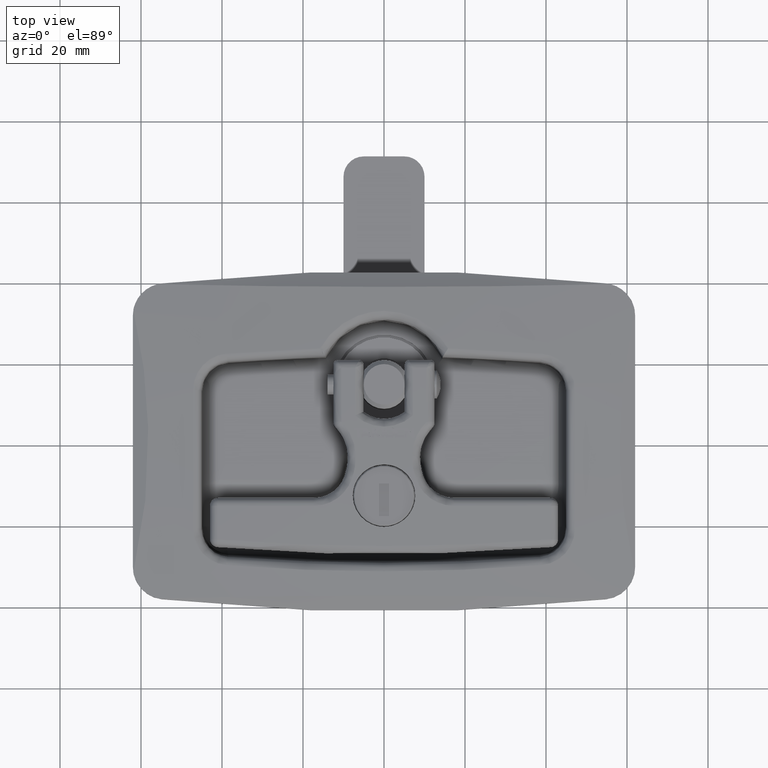
[diagram: clean part render]
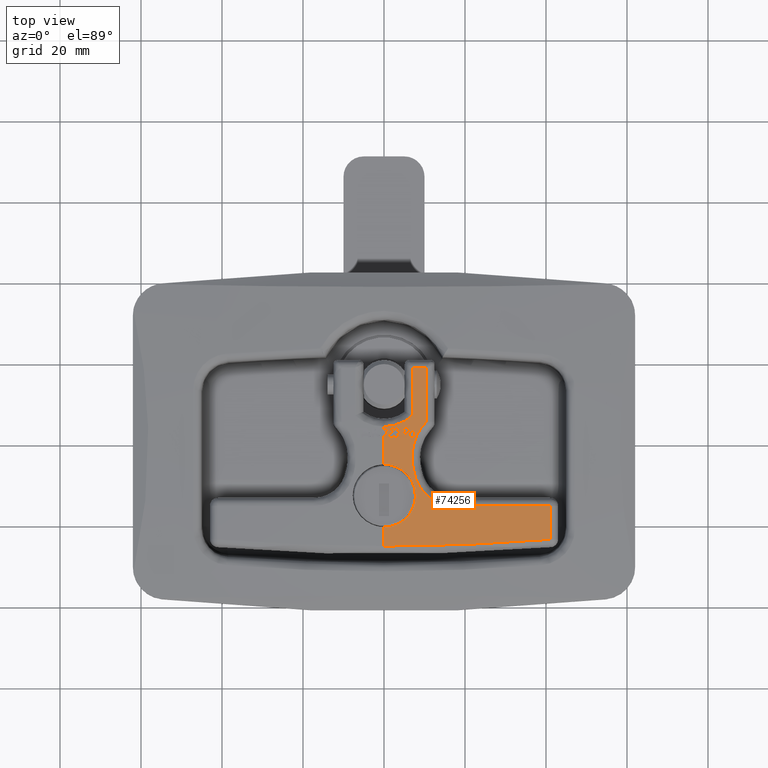
[diagram: same view with one face highlighted and labeled with its STEP entity id]
A machine part, top view. The second image highlights one B-rep face of the part: STEP entity #74256.
In plain terms, the highlighted toroidal blend (fillet) surface has major radius 300 mm and minor (blend) radius 500 mm.
Its self-contained STEP definition (entity closure, byte-faithful):
#619 = DIRECTION ( 'NONE',  ( 9.251858538542535200E-015, 1.000000000000000000, 0.0000000000000000000 ) ) ;
#769 = DIRECTION ( 'NONE',  ( -1.000000000000000000, 6.938780060218920200E-015, -8.367273950974986400E-013 ) ) ;
#770 = DIRECTION ( 'NONE',  ( -6.938893903907125800E-015, -1.000000000000000000, 0.0000000000000000000 ) ) ;
#771 = CARTESIAN_POINT ( 'NONE',  ( 1.200428645375933600E-013, 3.300000000000011400, -800.0000000000000000 ) ) ;
#772 = AXIS2_PLACEMENT_3D ( 'NONE', #771, #770, #769 ) ;
#773 = CIRCLE ( 'NONE', #772, 799.7006203718382300 ) ;
#876 = DIRECTION ( 'NONE',  ( 1.000000000000000000, -9.251862448518804000E-015, -1.117329132406560200E-012 ) ) ;
#1823 = CARTESIAN_POINT ( 'NONE',  ( 1.369275063704301600E-013, 0.8000000000000715400, -800.0000000000000000 ) ) ;
#1824 = AXIS2_PLACEMENT_3D ( 'NONE', #1823, #619, #876 ) ;
#1825 = CIRCLE ( 'NONE', #1824, 799.7809120004484400 ) ;
#2469 = CARTESIAN_POINT ( 'NONE',  ( 7.500000000000040000, 3.300000000000011400, -0.3345498127964012200 ) ) ;
#2470 = CARTESIAN_POINT ( 'NONE',  ( 7.500000000000042600, 2.886518471700572500, -0.3202341510680217200 ) ) ;
#2471 = CARTESIAN_POINT ( 'NONE',  ( 7.500000000000043500, 2.472933092971594700, -0.3064287388708536500 ) ) ;
#2472 = CARTESIAN_POINT ( 'NONE',  ( 7.500000000000044400, 1.955821392997812100, -0.2898105889861933800 ) ) ;
#2474 = CARTESIAN_POINT ( 'NONE',  ( 7.500000000000045300, 1.849489133385922500, -0.2864264770225201100 ) ) ;
#2475 = CARTESIAN_POINT ( 'NONE',  ( 7.500000000000048000, 1.639565757001230800, -0.2798126177759479600 ) ) ;
#2476 = CARTESIAN_POINT ( 'NONE',  ( 7.500000000000049700, 1.324694891380286700, -0.2699915809034050300 ) ) ;
#2477 = CARTESIAN_POINT ( 'NONE',  ( 7.500000000000045300, 1.009866608573217500, -0.2604697012815644400 ) ) ;
#2478 = CARTESIAN_POINT ( 'NONE',  ( 7.500000000000049700, 0.8000000000000020400, -0.2542546532248168800 ) ) ;
#2484 = B_SPLINE_CURVE_WITH_KNOTS ( 'NONE', 3,
 ( #2478, #2477, #2476, #2475, #2474, #2472, #2471, #2470, #2469 ),
 .UNSPECIFIED., .F., .F.,
 ( 4, 1, 2, 2, 4 ),
 ( 4.335119432264718900, 4.335731477006720300, 4.336037499377720600, 4.336343521748721000, 4.337567611232723100 ),
 .UNSPECIFIED. ) ;
#2490 = CARTESIAN_POINT ( 'NONE',  ( 7.500000000000040000, 3.300000000000011400, -0.3345498127964012200 ) ) ;
#4857 = DIRECTION ( 'NONE',  ( 0.0000000000000000000, 0.0000000000000000000, -1.000000000000000000 ) ) ;
#4858 = DIRECTION ( 'NONE',  ( 0.0000000000000000000, 1.000000000000000000, 0.0000000000000000000 ) ) ;
#4859 = AXIS2_PLACEMENT_3D ( 'NONE', #4861, #4858, #4857 ) ;
#4860 = CIRCLE ( 'NONE', #4859, 799.7809120004484400 ) ;
#4861 = CARTESIAN_POINT ( 'NONE',  ( 0.0000000000000000000, 0.8000000000000090400, -800.0000000000000000 ) ) ;
#5270 = CARTESIAN_POINT ( 'NONE',  ( 4.875000000000011500, 1.425000000000023400, -0.2528453365790925300 ) ) ;
#5271 = CARTESIAN_POINT ( 'NONE',  ( 4.875000000000011500, 1.321974975719804000, -0.2496654419829655000 ) ) ;
#5272 = CARTESIAN_POINT ( 'NONE',  ( 4.875000000000012400, 1.218943563153263500, -0.2465172387789936200 ) ) ;
#5273 = CARTESIAN_POINT ( 'NONE',  ( 4.875000000000012400, 1.012867957415827000, -0.2402842351488462800 ) ) ;
#5274 = CARTESIAN_POINT ( 'NONE',  ( 4.875000000000013300, 0.9053371670018663900, -0.2370651269984997400 ) ) ;
#5275 = CARTESIAN_POINT ( 'NONE',  ( 4.875000000000013300, 0.8000000000000090400, -0.2339457220824625600 ) ) ;
#5277 = B_SPLINE_CURVE_WITH_KNOTS ( 'NONE', 3,
 ( #5275, #5274, #5273, #5272, #5271, #5270 ),
 .UNSPECIFIED., .F., .F.,
 ( 4, 2, 4 ),
 ( 4.353560354874982600, 4.353865220701264200, 4.354170086527545900 ),
 .UNSPECIFIED. ) ;
#6734 = CARTESIAN_POINT ( 'NONE',  ( 6.875000000000032000, 3.300000000000004300, -0.3289322489510304600 ) ) ;
#9203 = CARTESIAN_POINT ( 'NONE',  ( 5.624999999999998200, 0.8000000000000020400, -0.2388690519719016700 ) ) ;
#9794 = CARTESIAN_POINT ( 'NONE',  ( 6.750000000000015100, 0.8000000000000090400, -0.2475728700355285300 ) ) ;
#17485 = CARTESIAN_POINT ( 'NONE',  ( 6.875000000000042600, 1.675000000000002900, -0.2753166655187923600 ) ) ;
#17598 = CARTESIAN_POINT ( 'NONE',  ( 5.750000000000014200, 3.300000000000004300, -0.3200516937397241400 ) ) ;
#17627 = B_SPLINE_CURVE_WITH_KNOTS ( 'NONE', 3,
 ( #17673, #17671, #17670, #17669, #17668, #17667, #17666, #17665, #17664 ),
 .UNSPECIFIED., .F., .F.,
 ( 4, 1, 2, 2, 4 ),
 ( 4.314058832237747300, 4.314452437386671100, 4.314649239961132900, 4.314846042535594800, 4.315633252833442200 ),
 .UNSPECIFIED. ) ;
#17631 = CARTESIAN_POINT ( 'NONE',  ( 5.750000000000014200, 3.300000000000004300, -0.3200516937397241400 ) ) ;
#17632 = CARTESIAN_POINT ( 'NONE',  ( 6.124984686261556500, 2.758355453177789400, -0.3039953607772937800 ) ) ;
#17633 = CARTESIAN_POINT ( 'NONE',  ( 6.499985818466359300, 2.216687151104198800, -0.2890836491518625800 ) ) ;
#17634 = CARTESIAN_POINT ( 'NONE',  ( 6.875000000000042600, 1.675000000000002900, -0.2753166655187923600 ) ) ;
#17636 = B_SPLINE_CURVE_WITH_KNOTS ( 'NONE', 3,
 ( #17634, #17633, #17632, #17631 ),
 .UNSPECIFIED., .F., .F.,
 ( 4, 4 ),
 ( 2.433048607383850000E-007, 0.001977173051399547000 ),
 .UNSPECIFIED. ) ;
#17664 = CARTESIAN_POINT ( 'NONE',  ( 6.875000000000042600, 1.675000000000002900, -0.2753166655187923600 ) ) ;
#17665 = CARTESIAN_POINT ( 'NONE',  ( 6.875000000000040900, 1.940977665802284800, -0.2836594742118161400 ) ) ;
#17666 = CARTESIAN_POINT ( 'NONE',  ( 6.875000000000041700, 2.206984480350578300, -0.2922157505308485800 ) ) ;
#17667 = CARTESIAN_POINT ( 'NONE',  ( 6.875000000000037300, 2.539529464059540900, -0.3031781471756449000 ) ) ;
#17668 = CARTESIAN_POINT ( 'NONE',  ( 6.875000000000037300, 2.610520299396035200, -0.3055325463829211000 ) ) ;
#17669 = CARTESIAN_POINT ( 'NONE',  ( 6.875000000000036400, 2.748424918924025700, -0.3101356309460727200 ) ) ;
#17670 = CARTESIAN_POINT ( 'NONE',  ( 6.875000000000032000, 2.955277025850126200, -0.3170829597289485700 ) ) ;
#17671 = CARTESIAN_POINT ( 'NONE',  ( 6.875000000000033800, 3.162114667101745300, -0.3241583817245649600 ) ) ;
#17673 = CARTESIAN_POINT ( 'NONE',  ( 6.875000000000032000, 3.300000000000004300, -0.3289322489510304600 ) ) ;
#25298 = DIRECTION ( 'NONE',  ( -1.000000000000000000, -1.110204809635027200E-014, -1.336653618715566000E-012 ) ) ;
#25299 = DIRECTION ( 'NONE',  ( 1.110223024625143300E-014, -1.000000000000000000, 0.0000000000000000000 ) ) ;
#25300 = CARTESIAN_POINT ( 'NONE',  ( -1.920685832601489800E-013, 3.299999999999927900, -800.0000000000000000 ) ) ;
#25301 = AXIS2_PLACEMENT_3D ( 'NONE', #25300, #25299, #25298 ) ;
#25302 = CIRCLE ( 'NONE', #25301, 799.7006203718382300 ) ;
#27240 = DIRECTION ( 'NONE',  ( 1.000000000000000000, -1.110228916318123600E-014, 1.340267458489916500E-012 ) ) ;
#27241 = DIRECTION ( 'NONE',  ( 1.110223024625143300E-014, 1.000000000000000000, 0.0000000000000000000 ) ) ;
#27242 = CARTESIAN_POINT ( 'NONE',  ( 1.643130076445219100E-013, 0.8000000000000645500, -800.0000000000000000 ) ) ;
#27243 = AXIS2_PLACEMENT_3D ( 'NONE', #27242, #27241, #27240 ) ;
#27244 = CIRCLE ( 'NONE', #27243, 799.7809120004484400 ) ;
#29649 = CARTESIAN_POINT ( 'NONE',  ( 5.624999999999987600, 2.425000000000010500, -0.2896357539984739700 ) ) ;
#29650 = CARTESIAN_POINT ( 'NONE',  ( 5.624999999999989300, 2.157865640918521500, -0.2808554344300001100 ) ) ;
#29651 = CARTESIAN_POINT ( 'NONE',  ( 5.624999999999992000, 1.890688120950035700, -0.2722881306752722400 ) ) ;
#29652 = CARTESIAN_POINT ( 'NONE',  ( 5.624999999999991100, 1.556662225870927700, -0.2618454879466831100 ) ) ;
#29653 = CARTESIAN_POINT ( 'NONE',  ( 5.624999999999991100, 1.486521575392822500, -0.2596667446454959900 ) ) ;
#29654 = CARTESIAN_POINT ( 'NONE',  ( 5.624999999999994700, 1.349217574840511300, -0.2554307552170158600 ) ) ;
#29655 = CARTESIAN_POINT ( 'NONE',  ( 5.624999999999995600, 1.143261399269094800, -0.2491192451824013600 ) ) ;
#29656 = CARTESIAN_POINT ( 'NONE',  ( 5.624999999999997300, 0.9373046994883386100, -0.2429351532678296100 ) ) ;
#29657 = CARTESIAN_POINT ( 'NONE',  ( 5.624999999999998200, 0.8000000000000020400, -0.2388690519719016700 ) ) ;
#29661 = B_SPLINE_CURVE_WITH_KNOTS ( 'NONE', 3,
 ( #29657, #29656, #29655, #29654, #29653, #29652, #29651, #29650, #29649 ),
 .UNSPECIFIED., .F., .F.,
 ( 4, 1, 2, 2, 4 ),
 ( 4.331493872845345400, 4.331889209481447600, 4.332086877799499200, 4.332284546117550800, 4.333075219389755300 ),
 .UNSPECIFIED. ) ;
#29665 = CARTESIAN_POINT ( 'NONE',  ( 5.624999999999987600, 2.425000000000010500, -0.2896357539984739700 ) ) ;
#30118 = CARTESIAN_POINT ( 'NONE',  ( 6.750000000000015100, 0.8000000000000090400, -0.2475728700355285300 ) ) ;
#30119 = CARTESIAN_POINT ( 'NONE',  ( 6.374986700241943400, 1.341685877428320900, -0.2604492178652617100 ) ) ;
#30120 = CARTESIAN_POINT ( 'NONE',  ( 5.999985568202279600, 1.883354179263379200, -0.2744702123763424500 ) ) ;
#30121 = CARTESIAN_POINT ( 'NONE',  ( 5.624999999999987600, 2.425000000000010500, -0.2896357539984739700 ) ) ;
#30122 = B_SPLINE_CURVE_WITH_KNOTS ( 'NONE', 3,
 ( #30121, #30120, #30119, #30118 ),
 .UNSPECIFIED., .F., .F.,
 ( 4, 4 ),
 ( 2.433162083410501300E-007, 0.001977114401081440500 ),
 .UNSPECIFIED. ) ;
#35810 = CARTESIAN_POINT ( 'NONE',  ( 41.10275658069720400, -16.00803212851405600, -1.060633162399385900 ) ) ;
#39120 = CARTESIAN_POINT ( 'NONE',  ( 7.490704703275109300, -15.50417173181754600, -0.03726974788274201700 ) ) ;
#39121 = CARTESIAN_POINT ( 'NONE',  ( 7.342964581410199400, -15.99163248462522400, -0.03760412972284549900 ) ) ;
#39123 = CARTESIAN_POINT ( 'NONE',  ( 7.256349047562118800, -16.23356340110142100, -0.03783791051356851000 ) ) ;
#39769 = CARTESIAN_POINT ( 'NONE',  ( 5.007610140252460800E-023, -21.25000000000000000, -0.05256526310684928700 ) ) ;
#39770 = DIRECTION ( 'NONE',  ( 0.0000000000000000000, 0.0000000000000000000, 1.000000000000000000 ) ) ;
#39771 = DIRECTION ( 'NONE',  ( -1.000000000000000000, 0.0000000000000000000, 0.0000000000000000000 ) ) ;
#39772 = CARTESIAN_POINT ( 'NONE',  ( 0.0000000000000000000, -13.99999999999999800, -500.0000000000000000 ) ) ;
#39773 = AXIS2_PLACEMENT_3D ( 'NONE', #39772, #39771, #39770 ) ;
#39774 = CIRCLE ( 'NONE', #39773, 500.0000000000000000 ) ;
#39786 = CARTESIAN_POINT ( 'NONE',  ( -3.071992556269208100E-011, -25.94555999727306900, -0.1427167717253497200 ) ) ;
#39822 = CARTESIAN_POINT ( 'NONE',  ( 4.874466196669258500E-022, -5.749999999999999100, -0.06806713313458218100 ) ) ;
#39944 = CARTESIAN_POINT ( 'NONE',  ( 0.0000000000000000000, 0.8000000000000020400, -0.2190879995516148400 ) ) ;
#39945 = DIRECTION ( 'NONE',  ( 0.0000000000000000000, 0.0000000000000000000, 1.000000000000000000 ) ) ;
#39946 = DIRECTION ( 'NONE',  ( -1.000000000000000000, 0.0000000000000000000, 0.0000000000000000000 ) ) ;
#39947 = CARTESIAN_POINT ( 'NONE',  ( 0.0000000000000000000, -13.99999999999999800, -500.0000000000000000 ) ) ;
#39948 = AXIS2_PLACEMENT_3D ( 'NONE', #39947, #39946, #39945 ) ;
#39949 = CIRCLE ( 'NONE', #39948, 500.0000000000000000 ) ;
#40010 = CARTESIAN_POINT ( 'NONE',  ( 6.964619611647608900, -16.93721618997712100, -0.03870070615687644400 ) ) ;
#40011 = CARTESIAN_POINT ( 'NONE',  ( 6.726495084893780800, -17.38249309887784800, -0.03949359739412459200 ) ) ;
#40012 = CARTESIAN_POINT ( 'NONE',  ( 6.304190451420969200, -18.01485658129870500, -0.04090265927492251600 ) ) ;
#40013 = CARTESIAN_POINT ( 'NONE',  ( 6.151730235989964200, -18.22058291009232200, -0.04141153038661746200 ) ) ;
#40014 = CARTESIAN_POINT ( 'NONE',  ( 5.827694854424934500, -18.61523807766147700, -0.04247264099183945000 ) ) ;
#40015 = CARTESIAN_POINT ( 'NONE',  ( 5.657154763639115700, -18.80311299317851600, -0.04302145666801091000 ) ) ;
#40016 = CARTESIAN_POINT ( 'NONE',  ( 5.120716896826619900, -19.33921126654005800, -0.04468964132572448400 ) ) ;
#40017 = CARTESIAN_POINT ( 'NONE',  ( 4.730238424702975800, -19.66017090642668900, -0.04583083150474029400 ) ) ;
#40018 = CARTESIAN_POINT ( 'NONE',  ( 4.093866106657494600, -20.08542713789254800, -0.04746096455871873200 ) ) ;
#40019 = CARTESIAN_POINT ( 'NONE',  ( 3.873881992892412600, -20.21713069673233000, -0.04798852230904417100 ) ) ;
#40020 = CARTESIAN_POINT ( 'NONE',  ( 3.426484190676486000, -20.45600550480547500, -0.04897461135471095600 ) ) ;
#40021 = CARTESIAN_POINT ( 'NONE',  ( 2.969457412321566500, -20.67187071321032800, -0.04989747971144124800 ) ) ;
#40022 = CARTESIAN_POINT ( 'NONE',  ( 2.493426854056759900, -20.84232423626425800, -0.05066327413508203000 ) ) ;
#40023 = CARTESIAN_POINT ( 'NONE',  ( 2.007745819239115500, -20.98971691002355700, -0.05133579780731564000 ) ) ;
#40028 = CARTESIAN_POINT ( 'NONE',  ( 1.758657899186871300, -21.05212368561570100, -0.05162657346654796200 ) ) ;
#40029 = CARTESIAN_POINT ( 'NONE',  ( 1.008727240316293000, -21.20095892934666900, -0.05232641817500789700 ) ) ;
#40030 = CARTESIAN_POINT ( 'NONE',  ( 0.5058111121533420700, -21.25000000000001100, -0.05256526310676212800 ) ) ;
#40031 = CARTESIAN_POINT ( 'NONE',  ( 5.007610140252460800E-023, -21.25000000000000000, -0.05256526310684928700 ) ) ;
#40033 = B_SPLINE_CURVE_WITH_KNOTS ( 'NONE', 3,
 ( #40031, #40030, #40029, #40028, #40023, #40022, #40021, #40020, #40019, #40018, #40017, #40016, #40015, #40014, #40013, #40012, #40011, #40010, #39123, #39121, #39120, #40067, #40066, #40065, #40064 ),
 .UNSPECIFIED., .F., .F.,
 ( 4, 2, 2, 1, 2, 2, 2, 2, 2, 2, 2, 2, 4 ),
 ( 0.006048879996816178300, 0.007563676480778422400, 0.008321074722759544400, 0.009078472964740668200, 0.009835871206721790200, 0.01059326944870291400, 0.01210806593266516700, 0.01286546417464629100, 0.01362286241662741600, 0.01513765890058966400, 0.01589505714257079300, 0.01665245538455192200, 0.01816725186851418300 ),
 .UNSPECIFIED. ) ;
#40063 = CARTESIAN_POINT ( 'NONE',  ( 7.750000000000000900, -13.50000000000024500, -0.03778995507391938500 ) ) ;
#40064 = CARTESIAN_POINT ( 'NONE',  ( 7.750000000000000900, -13.50000000000024500, -0.03778995507391938500 ) ) ;
#40065 = CARTESIAN_POINT ( 'NONE',  ( 7.749999999999982200, -14.01166145752772300, -0.03727826934955707400 ) ) ;
#40066 = CARTESIAN_POINT ( 'NONE',  ( 7.699825445178953000, -14.51510402769788400, -0.03706914917486048300 ) ) ;
#40067 = CARTESIAN_POINT ( 'NONE',  ( 7.552108570074788800, -15.25839931873320100, -0.03716799510064268400 ) ) ;
#40074 = CARTESIAN_POINT ( 'NONE',  ( -1.200428645375952700E-014, 3.299999999999997200, -0.2993796281617888700 ) ) ;
#40112 = DIRECTION ( 'NONE',  ( 0.0000000000000000000, 0.0000000000000000000, 1.000000000000000000 ) ) ;
#40113 = DIRECTION ( 'NONE',  ( -1.000000000000000000, 0.0000000000000000000, 0.0000000000000000000 ) ) ;
#40114 = CARTESIAN_POINT ( 'NONE',  ( 0.0000000000000000000, -13.99999999999999800, -500.0000000000000000 ) ) ;
#40115 = AXIS2_PLACEMENT_3D ( 'NONE', #40114, #40113, #40112 ) ;
#40116 = CIRCLE ( 'NONE', #40115, 500.0000000000000000 ) ;
#40117 = CARTESIAN_POINT ( 'NONE',  ( 1.975414349692976500E-011, 3.570281124497989300, -0.3088101424979239900 ) ) ;
#45275 = CARTESIAN_POINT ( 'NONE',  ( 7.699630610432773600, -12.48353035067320600, -0.03910194675757092800 ) ) ;
#45276 = CARTESIAN_POINT ( 'NONE',  ( 7.750000000000017800, -12.98838805660594200, -0.03830159128145488300 ) ) ;
#45277 = B_SPLINE_CURVE_WITH_KNOTS ( 'NONE', 3,
 ( #45279, #45276, #45275, #45331, #45330, #45329, #45328, #45327, #45326, #45325, #45324, #45323, #45322, #45321, #45320, #45319, #45318, #45317, #45316, #45315, #45314, #45313, #45312 ),
 .UNSPECIFIED., .F., .F.,
 ( 4, 2, 2, 2, 2, 2, 2, 2, 1, 2, 2, 4 ),
 ( 0.01816725186851418300, 0.01968190176368469700, 0.02043922671126995000, 0.02119655165885520400, 0.02271120155402571400, 0.02422585144919622200, 0.02574050134436672900, 0.02649782629195198600, 0.02725515123953723900, 0.02801247618712249300, 0.02876980113470774600, 0.03028445102987825700 ),
 .UNSPECIFIED. ) ;
#45279 = CARTESIAN_POINT ( 'NONE',  ( 7.750000000000000900, -13.50000000000024500, -0.03778995507391938500 ) ) ;
#45312 = CARTESIAN_POINT ( 'NONE',  ( 4.874466196669258500E-022, -5.749999999999999100, -0.06806713313458218100 ) ) ;
#45313 = CARTESIAN_POINT ( 'NONE',  ( 0.5054254045645655300, -5.749999999999999100, -0.06806713313455777000 ) ) ;
#45314 = CARTESIAN_POINT ( 'NONE',  ( 1.008580858453002500, -5.798963090708827700, -0.06773069153731869900 ) ) ;
#45315 = CARTESIAN_POINT ( 'NONE',  ( 1.759803611595429900, -5.948128215124981500, -0.06673090411883633700 ) ) ;
#45316 = CARTESIAN_POINT ( 'NONE',  ( 2.008149066993314400, -6.010402431328933500, -0.06631618141184396400 ) ) ;
#45317 = CARTESIAN_POINT ( 'NONE',  ( 2.493193582547781800, -6.157608007205539000, -0.06535002994290625700 ) ) ;
#45318 = CARTESIAN_POINT ( 'NONE',  ( 2.968915125933831800, -6.327906347090841000, -0.06424422930802918500 ) ) ;
#45319 = CARTESIAN_POINT ( 'NONE',  ( 3.426209549443137700, -6.543848360296899500, -0.06288899819126961300 ) ) ;
#45320 = CARTESIAN_POINT ( 'NONE',  ( 3.874132802007539400, -6.783002713738179400, -0.06142334087055667500 ) ) ;
#45321 = CARTESIAN_POINT ( 'NONE',  ( 4.094563276405073000, -6.915024699609700700, -0.06063048197197671400 ) ) ;
#45322 = CARTESIAN_POINT ( 'NONE',  ( 4.729731256879915700, -7.339518301087657000, -0.05815417886012394500 ) ) ;
#45323 = CARTESIAN_POINT ( 'NONE',  ( 5.120062573168831400, -7.660187665842111700, -0.05637227914008548200 ) ) ;
#45324 = CARTESIAN_POINT ( 'NONE',  ( 5.835812151000221000, -8.375378512554799900, -0.05271598579873312100 ) ) ;
#45325 = CARTESIAN_POINT ( 'NONE',  ( 6.163406093044360800, -8.774396609208569200, -0.05082430725509790700 ) ) ;
#45326 = CARTESIAN_POINT ( 'NONE',  ( 6.725895999544780700, -9.616544698577911300, -0.04726301236090284200 ) ) ;
#45327 = CARTESIAN_POINT ( 'NONE',  ( 6.964176033369700900, -10.06178547160678400, -0.04557891548027504700 ) ) ;
#45328 = CARTESIAN_POINT ( 'NONE',  ( 7.256330913332918800, -10.76635711586849100, -0.04330553377141963000 ) ) ;
#45329 = CARTESIAN_POINT ( 'NONE',  ( 7.342977918354814700, -11.00845073416212100, -0.04258750475296419600 ) ) ;
#45330 = CARTESIAN_POINT ( 'NONE',  ( 7.490490362563699400, -11.49508190145233200, -0.04128024447501126700 ) ) ;
#45331 = CARTESIAN_POINT ( 'NONE',  ( 7.551868542237043500, -11.74058616521026400, -0.04068734779476612000 ) ) ;
#65718 = VERTEX_POINT ( 'NONE', #113704 ) ;
#73241 = EDGE_LOOP ( 'NONE', ( #77726, #79468, #78900, #85743, #76684, #75837, #80834, #80579, #80572, #80044, #77806, #82430, #78880, #78772, #78863, #78092, #81717 ) ) ;
#74256 = ADVANCED_FACE ( 'NONE', ( #113784, #113783, #113781, #113779 ), #113771, .T. ) ;
#75837 = ORIENTED_EDGE ( 'NONE', *, *, #81651, .T. ) ;
#76552 = VERTEX_POINT ( 'NONE', #113854 ) ;
#76564 = EDGE_CURVE ( 'NONE', #77503, #76552, #113848, .T. ) ;
#76684 = ORIENTED_EDGE ( 'NONE', *, *, #76564, .T. ) ;
#77503 = VERTEX_POINT ( 'NONE', #113834 ) ;
#77519 = EDGE_CURVE ( 'NONE', #105612, #77503, #113938, .T. ) ;
#77726 = ORIENTED_EDGE ( 'NONE', *, *, #106233, .F. ) ;
#77806 = ORIENTED_EDGE ( 'NONE', *, *, #82652, .T. ) ;
#77977 = VERTEX_POINT ( 'NONE', #113930 ) ;
#78092 = ORIENTED_EDGE ( 'NONE', *, *, #107016, .F. ) ;
#78694 = VERTEX_POINT ( 'NONE', #113887 ) ;
#78772 = ORIENTED_EDGE ( 'NONE', *, *, #82189, .F. ) ;
#78863 = ORIENTED_EDGE ( 'NONE', *, *, #106285, .F. ) ;
#78880 = ORIENTED_EDGE ( 'NONE', *, *, #106341, .F. ) ;
#78887 = EDGE_CURVE ( 'NONE', #79132, #105612, #114031, .T. ) ;
#78900 = ORIENTED_EDGE ( 'NONE', *, *, #78887, .T. ) ;
#79132 = VERTEX_POINT ( 'NONE', #114029 ) ;
#79468 = ORIENTED_EDGE ( 'NONE', *, *, #79483, .T. ) ;
#79483 = EDGE_CURVE ( 'NONE', #106229, #79132, #114015, .T. ) ;
#80037 = VERTEX_POINT ( 'NONE', #114010 ) ;
#80044 = ORIENTED_EDGE ( 'NONE', *, *, #80049, .T. ) ;
#80049 = EDGE_CURVE ( 'NONE', #80037, #77977, #113990, .T. ) ;
#80309 = VERTEX_POINT ( 'NONE', #113981 ) ;
#80531 = ORIENTED_EDGE ( 'NONE', *, *, #84146, .F. ) ;
#80561 = EDGE_CURVE ( 'NONE', #80583, #80586, #113975, .T. ) ;
#80572 = ORIENTED_EDGE ( 'NONE', *, *, #80573, .T. ) ;
#80573 = EDGE_CURVE ( 'NONE', #80586, #80037, #114068, .T. ) ;
#80579 = ORIENTED_EDGE ( 'NONE', *, *, #80561, .T. ) ;
#80583 = VERTEX_POINT ( 'NONE', #114066 ) ;
#80586 = VERTEX_POINT ( 'NONE', #114073 ) ;
#80747 = VERTEX_POINT ( 'NONE', #114061 ) ;
#80834 = ORIENTED_EDGE ( 'NONE', *, *, #80840, .T. ) ;
#80837 = VERTEX_POINT ( 'NONE', #114054 ) ;
#80840 = EDGE_CURVE ( 'NONE', #80837, #80583, #114053, .T. ) ;
#81651 = EDGE_CURVE ( 'NONE', #76552, #80837, #114035, .T. ) ;
#81691 = ORIENTED_EDGE ( 'NONE', *, *, #83276, .F. ) ;
#81717 = ORIENTED_EDGE ( 'NONE', *, *, #106307, .F. ) ;
#81720 = VERTEX_POINT ( 'NONE', #114049 ) ;
#81731 = EDGE_LOOP ( 'NONE', ( #81691, #83030, #83041, #82856, #82839, #80531, #84215, #83980, #83513, #83301, #83289, #96165 ) ) ;
#81977 = VERTEX_POINT ( 'NONE', #114151 ) ;
#82189 = EDGE_CURVE ( 'NONE', #106286, #106337, #114133, .T. ) ;
#82312 = EDGE_CURVE ( 'NONE', #78694, #106343, #114119, .T. ) ;
#82430 = ORIENTED_EDGE ( 'NONE', *, *, #82312, .T. ) ;
#82652 = EDGE_CURVE ( 'NONE', #77977, #78694, #114109, .T. ) ;
#82811 = EDGE_CURVE ( 'NONE', #80747, #82834, #114200, .T. ) ;
#82816 = EDGE_CURVE ( 'NONE', #82834, #81977, #114198, .T. ) ;
#82834 = VERTEX_POINT ( 'NONE', #114190 ) ;
#82839 = ORIENTED_EDGE ( 'NONE', *, *, #82811, .F. ) ;
#82856 = ORIENTED_EDGE ( 'NONE', *, *, #82816, .F. ) ;
#83030 = ORIENTED_EDGE ( 'NONE', *, *, #83076, .F. ) ;
#83041 = ORIENTED_EDGE ( 'NONE', *, *, #83072, .F. ) ;
#83072 = EDGE_CURVE ( 'NONE', #81977, #83077, #114174, .T. ) ;
#83076 = EDGE_CURVE ( 'NONE', #83077, #81720, #114157, .T. ) ;
#83077 = VERTEX_POINT ( 'NONE', #114177 ) ;
#83210 = VERTEX_POINT ( 'NONE', #114255 ) ;
#83276 = EDGE_CURVE ( 'NONE', #81720, #83210, #114252, .T. ) ;
#83284 = VERTEX_POINT ( 'NONE', #114251 ) ;
#83289 = ORIENTED_EDGE ( 'NONE', *, *, #96241, .F. ) ;
#83301 = ORIENTED_EDGE ( 'NONE', *, *, #83303, .F. ) ;
#83303 = EDGE_CURVE ( 'NONE', #83515, #83504, #114225, .T. ) ;
#83426 = EDGE_CURVE ( 'NONE', #83504, #83989, #114218, .T. ) ;
#83504 = VERTEX_POINT ( 'NONE', #114217 ) ;
#83513 = ORIENTED_EDGE ( 'NONE', *, *, #83426, .F. ) ;
#83515 = VERTEX_POINT ( 'NONE', #114219 ) ;
#83972 = EDGE_CURVE ( 'NONE', #84018, #80309, #114290, .T. ) ;
#83980 = ORIENTED_EDGE ( 'NONE', *, *, #84027, .F. ) ;
#83989 = VERTEX_POINT ( 'NONE', #114289 ) ;
#84018 = VERTEX_POINT ( 'NONE', #114288 ) ;
#84027 = EDGE_CURVE ( 'NONE', #83989, #84018, #114281, .T. ) ;
#84146 = EDGE_CURVE ( 'NONE', #80309, #80747, #114276, .T. ) ;
#84215 = ORIENTED_EDGE ( 'NONE', *, *, #83972, .F. ) ;
#84240 = VERTEX_POINT ( 'NONE', #114270 ) ;
#84304 = EDGE_CURVE ( 'NONE', #84443, #84714, #114269, .T. ) ;
#84310 = ORIENTED_EDGE ( 'NONE', *, *, #84440, .F. ) ;
#84440 = EDGE_CURVE ( 'NONE', #84240, #84443, #114350, .T. ) ;
#84443 = VERTEX_POINT ( 'NONE', #114353 ) ;
#84685 = ORIENTED_EDGE ( 'NONE', *, *, #84304, .F. ) ;
#84714 = VERTEX_POINT ( 'NONE', #114348 ) ;
#84749 = VERTEX_POINT ( 'NONE', #114344 ) ;
#85257 = EDGE_CURVE ( 'NONE', #84714, #84749, #114325, .T. ) ;
#85260 = ORIENTED_EDGE ( 'NONE', *, *, #85257, .F. ) ;
#85506 = EDGE_LOOP ( 'NONE', ( #85260, #84685, #84310, #88429, #87906, #87398, #87316, #85965, #91153, #91191, #89969, #89293, #88866, #92939, #93016, #92557, #92442, #91898, #94590, #94029, #90093 ) ) ;
#85743 = ORIENTED_EDGE ( 'NONE', *, *, #77519, .T. ) ;
#85965 = ORIENTED_EDGE ( 'NONE', *, *, #86104, .F. ) ;
#86104 = EDGE_CURVE ( 'NONE', #65718, #86474, #114297, .T. ) ;
#86474 = VERTEX_POINT ( 'NONE', #114429 ) ;
#86534 = VERTEX_POINT ( 'NONE', #114427 ) ;
#86795 = VERTEX_POINT ( 'NONE', #114426 ) ;
#87294 = VERTEX_POINT ( 'NONE', #114423 ) ;
#87314 = EDGE_CURVE ( 'NONE', #86474, #87294, #114417, .T. ) ;
#87316 = ORIENTED_EDGE ( 'NONE', *, *, #87314, .F. ) ;
#87398 = ORIENTED_EDGE ( 'NONE', *, *, #87522, .F. ) ;
#87522 = EDGE_CURVE ( 'NONE', #87294, #87528, #114394, .T. ) ;
#87528 = VERTEX_POINT ( 'NONE', #114392 ) ;
#87646 = EDGE_CURVE ( 'NONE', #87528, #86534, #114365, .T. ) ;
#87906 = ORIENTED_EDGE ( 'NONE', *, *, #87646, .F. ) ;
#88409 = VERTEX_POINT ( 'NONE', #116759 ) ;
#88429 = ORIENTED_EDGE ( 'NONE', *, *, #88481, .F. ) ;
#88481 = EDGE_CURVE ( 'NONE', #86534, #84240, #117025, .T. ) ;
#88866 = ORIENTED_EDGE ( 'NONE', *, *, #88989, .F. ) ;
#88972 = VERTEX_POINT ( 'NONE', #117060 ) ;
#88989 = EDGE_CURVE ( 'NONE', #88409, #88972, #117120, .T. ) ;
#89263 = VERTEX_POINT ( 'NONE', #124737 ) ;
#89293 = ORIENTED_EDGE ( 'NONE', *, *, #89305, .F. ) ;
#89305 = EDGE_CURVE ( 'NONE', #88972, #89263, #128346, .T. ) ;
#89529 = ORIENTED_EDGE ( 'NONE', *, *, #92941, .F. ) ;
#89911 = VERTEX_POINT ( 'NONE', #137200 ) ;
#89916 = VERTEX_POINT ( 'NONE', #137191 ) ;
#89969 = ORIENTED_EDGE ( 'NONE', *, *, #90096, .F. ) ;
#90093 = ORIENTED_EDGE ( 'NONE', *, *, #93930, .F. ) ;
#90096 = EDGE_CURVE ( 'NONE', #89263, #90143, #137488, .T. ) ;
#90132 = ORIENTED_EDGE ( 'NONE', *, *, #93336, .F. ) ;
#90143 = VERTEX_POINT ( 'NONE', #137554 ) ;
#90187 = EDGE_LOOP ( 'NONE', ( #90132, #89529, #99413, #99540, #101085, #95532, #95195, #98198, #103438, #102026 ) ) ;
#90711 = VERTEX_POINT ( 'NONE', #138494 ) ;
#90782 = VERTEX_POINT ( 'NONE', #138592 ) ;
#90935 = EDGE_CURVE ( 'NONE', #91091, #65718, #138883, .T. ) ;
#90941 = EDGE_CURVE ( 'NONE', #90143, #91091, #138859, .T. ) ;
#91091 = VERTEX_POINT ( 'NONE', #139134 ) ;
#91153 = ORIENTED_EDGE ( 'NONE', *, *, #90935, .F. ) ;
#91191 = ORIENTED_EDGE ( 'NONE', *, *, #90941, .F. ) ;
#91194 = VERTEX_POINT ( 'NONE', #139332 ) ;
#91811 = VERTEX_POINT ( 'NONE', #140776 ) ;
#91884 = EDGE_CURVE ( 'NONE', #91194, #91811, #140892, .T. ) ;
#91898 = ORIENTED_EDGE ( 'NONE', *, *, #91884, .F. ) ;
#92340 = VERTEX_POINT ( 'NONE', #141695 ) ;
#92388 = EDGE_CURVE ( 'NONE', #91811, #92340, #141923, .T. ) ;
#92442 = ORIENTED_EDGE ( 'NONE', *, *, #92388, .F. ) ;
#92557 = ORIENTED_EDGE ( 'NONE', *, *, #92564, .F. ) ;
#92564 = EDGE_CURVE ( 'NONE', #92340, #86795, #142649, .T. ) ;
#92935 = EDGE_CURVE ( 'NONE', #86795, #93133, #144345, .T. ) ;
#92939 = ORIENTED_EDGE ( 'NONE', *, *, #93184, .F. ) ;
#92941 = EDGE_CURVE ( 'NONE', #99500, #89916, #144395, .T. ) ;
#93016 = ORIENTED_EDGE ( 'NONE', *, *, #92935, .F. ) ;
#93133 = VERTEX_POINT ( 'NONE', #144749 ) ;
#93184 = EDGE_CURVE ( 'NONE', #93133, #88409, #144891, .T. ) ;
#93336 = EDGE_CURVE ( 'NONE', #89916, #89911, #145667, .T. ) ;
#93930 = EDGE_CURVE ( 'NONE', #84749, #90782, #147266, .T. ) ;
#94029 = ORIENTED_EDGE ( 'NONE', *, *, #94263, .F. ) ;
#94129 = VERTEX_POINT ( 'NONE', #147642 ) ;
#94263 = EDGE_CURVE ( 'NONE', #90782, #94129, #148022, .T. ) ;
#94590 = ORIENTED_EDGE ( 'NONE', *, *, #94621, .F. ) ;
#94621 = EDGE_CURVE ( 'NONE', #94129, #91194, #773, .T. ) ;
#95195 = ORIENTED_EDGE ( 'NONE', *, *, #95199, .F. ) ;
#95199 = EDGE_CURVE ( 'NONE', #98111, #90711, #1825, .T. ) ;
#95521 = VERTEX_POINT ( 'NONE', #2490 ) ;
#95528 = EDGE_CURVE ( 'NONE', #90711, #95521, #2484, .T. ) ;
#95532 = ORIENTED_EDGE ( 'NONE', *, *, #95528, .F. ) ;
#96165 = ORIENTED_EDGE ( 'NONE', *, *, #96224, .F. ) ;
#96224 = EDGE_CURVE ( 'NONE', #83210, #83284, #4860, .T. ) ;
#96241 = EDGE_CURVE ( 'NONE', #83284, #83515, #5277, .T. ) ;
#96806 = VERTEX_POINT ( 'NONE', #6734 ) ;
#97864 = VERTEX_POINT ( 'NONE', #9203 ) ;
#98111 = VERTEX_POINT ( 'NONE', #9794 ) ;
#98198 = ORIENTED_EDGE ( 'NONE', *, *, #103715, .F. ) ;
#99413 = ORIENTED_EDGE ( 'NONE', *, *, #99521, .F. ) ;
#99469 = VERTEX_POINT ( 'NONE', #17485 ) ;
#99500 = VERTEX_POINT ( 'NONE', #17598 ) ;
#99521 = EDGE_CURVE ( 'NONE', #99469, #99500, #17636, .T. ) ;
#99524 = EDGE_CURVE ( 'NONE', #96806, #99469, #17627, .T. ) ;
#99540 = ORIENTED_EDGE ( 'NONE', *, *, #99524, .F. ) ;
#101082 = EDGE_CURVE ( 'NONE', #95521, #96806, #25302, .T. ) ;
#101085 = ORIENTED_EDGE ( 'NONE', *, *, #101082, .F. ) ;
#102026 = ORIENTED_EDGE ( 'NONE', *, *, #102093, .F. ) ;
#102093 = EDGE_CURVE ( 'NONE', #89911, #97864, #27244, .T. ) ;
#103402 = VERTEX_POINT ( 'NONE', #29665 ) ;
#103406 = EDGE_CURVE ( 'NONE', #97864, #103402, #29661, .T. ) ;
#103438 = ORIENTED_EDGE ( 'NONE', *, *, #103406, .F. ) ;
#103715 = EDGE_CURVE ( 'NONE', #103402, #98111, #30122, .T. ) ;
#105612 = VERTEX_POINT ( 'NONE', #35810 ) ;
#106229 = VERTEX_POINT ( 'NONE', #39786 ) ;
#106233 = EDGE_CURVE ( 'NONE', #106229, #106235, #39774, .T. ) ;
#106235 = VERTEX_POINT ( 'NONE', #39769 ) ;
#106242 = VERTEX_POINT ( 'NONE', #39822 ) ;
#106285 = EDGE_CURVE ( 'NONE', #106242, #106286, #39949, .T. ) ;
#106286 = VERTEX_POINT ( 'NONE', #39944 ) ;
#106307 = EDGE_CURVE ( 'NONE', #106235, #106308, #40033, .T. ) ;
#106308 = VERTEX_POINT ( 'NONE', #40063 ) ;
#106337 = VERTEX_POINT ( 'NONE', #40074 ) ;
#106341 = EDGE_CURVE ( 'NONE', #106337, #106343, #40116, .T. ) ;
#106343 = VERTEX_POINT ( 'NONE', #40117 ) ;
#107016 = EDGE_CURVE ( 'NONE', #106308, #106242, #45277, .T. ) ;
#112592 = CARTESIAN_POINT ( 'NONE',  ( 10.43497862224198200, 4.711416152152420300, -0.4183119523479396600 ) ) ;
#112598 = CARTESIAN_POINT ( 'NONE',  ( 10.34210602255772200, 4.609035709226957600, -0.4132816515862715600 ) ) ;
#112845 = CARTESIAN_POINT ( 'NONE',  ( 10.52630877935970400, 4.815130935013995900, -0.4234202195855925600 ) ) ;
#113704 = CARTESIAN_POINT ( 'NONE',  ( 1.750000000000003300, 1.424999999999999200, -0.2399018973016928400 ) ) ;
#113767 = DIRECTION ( 'NONE',  ( 0.0000000000000000000, 0.0000000000000000000, 1.000000000000000000 ) ) ;
#113769 = DIRECTION ( 'NONE',  ( 0.0000000000000000000, 1.000000000000000000, 0.0000000000000000000 ) ) ;
#113770 = AXIS2_PLACEMENT_3D ( 'NONE', #113777, #113769, #113767 ) ;
#113771 = TOROIDAL_SURFACE ( 'NONE', #113770, 300.0000000000000600, 500.0000000000000000 ) ;
#113777 = CARTESIAN_POINT ( 'NONE',  ( 0.0000000000000000000, -13.99999999999999800, -800.0000000000000000 ) ) ;
#113779 = FACE_BOUND ( 'NONE', #90187, .T. ) ;
#113781 = FACE_BOUND ( 'NONE', #85506, .T. ) ;
#113783 = FACE_BOUND ( 'NONE', #81731, .T. ) ;
#113784 = FACE_OUTER_BOUND ( 'NONE', #73241, .T. ) ;
#113807 = CARTESIAN_POINT ( 'NONE',  ( 10.99660358112997600, -13.77928503218027200, -0.07557626488312482700 ) ) ;
#113809 = CARTESIAN_POINT ( 'NONE',  ( 11.20510553784605200, -13.94351399084003900, -0.07842642172635234900 ) ) ;
#113811 = CARTESIAN_POINT ( 'NONE',  ( 11.84318831910735500, -14.40659193278260000, -0.08762488148580661900 ) ) ;
#113813 = CARTESIAN_POINT ( 'NONE',  ( 12.28864984956564200, -14.67912097247723900, -0.09465717391289847600 ) ) ;
#113815 = CARTESIAN_POINT ( 'NONE',  ( 12.98636631776069400, -15.03468828557334500, -0.1064333657959155900 ) ) ;
#113817 = CARTESIAN_POINT ( 'NONE',  ( 13.22388184221267700, -15.14429880002166400, -0.1105645794057831300 ) ) ;
#113819 = CARTESIAN_POINT ( 'NONE',  ( 13.70897715376189800, -15.34537634888796200, -0.1192320698801727400 ) ) ;
#113821 = CARTESIAN_POINT ( 'NONE',  ( 13.95768937642130300, -15.43718571200287200, -0.1237898299069389400 ) ) ;
#113823 = CARTESIAN_POINT ( 'NONE',  ( 15.21136548222306000, -15.84426154384839900, -0.1472959319055157900 ) ) ;
#113834 = CARTESIAN_POINT ( 'NONE',  ( 17.30028128553174600, -16.00803212851405600, -0.1911173606286157300 ) ) ;
#113840 = CARTESIAN_POINT ( 'NONE',  ( 16.24187641167478800, -16.00803212851406000, -0.1682235138245171400 ) ) ;
#113842 = CARTESIAN_POINT ( 'NONE',  ( 17.30028128553174600, -16.00803212851405600, -0.1911173606286157300 ) ) ;
#113848 = B_SPLINE_CURVE_WITH_KNOTS ( 'NONE', 3,
 ( #113842, #113840, #113823, #113821, #113819, #113817, #113815, #113813, #113811, #113809, #113807, #113960, #113958, #113956, #113954, #113953, #113951, #113949, #113947, #113945 ),
 .UNSPECIFIED., .F., .F.,
 ( 4, 2, 2, 2, 2, 2, 2, 2, 2, 4 ),
 ( 0.0000000000000000000, 0.003130757802932747300, 0.003913447253665932500, 0.004696136704399119000, 0.006261515605865489300, 0.007044205056598676700, 0.007826894507331863200, 0.009392273408798241400, 0.01095765231026462000, 0.01252303121173099800 ),
 .UNSPECIFIED. ) ;
#113854 = CARTESIAN_POINT ( 'NONE',  ( 7.769657256872249300, -9.082070713168699100, -0.06191837770154167600 ) ) ;
#113887 = CARTESIAN_POINT ( 'NONE',  ( 7.117788942694628100, 6.345751162323807600, -0.4458024384913570300 ) ) ;
#113930 = CARTESIAN_POINT ( 'NONE',  ( 7.117780643396140600, 18.12851405622490800, -1.065014974745520900 ) ) ;
#113931 = DIRECTION ( 'NONE',  ( 2.664535259100375700E-014, -2.168415274351269500E-016, 1.000000000000000000 ) ) ;
#113933 = DIRECTION ( 'NONE',  ( 6.738630096026303400E-017, -1.000000000000000000, -2.180183028473864600E-016 ) ) ;
#113935 = CARTESIAN_POINT ( 'NONE',  ( 1.353138573499142300E-016, -16.00803212851388600, -800.0000000000000000 ) ) ;
#113936 = AXIS2_PLACEMENT_3D ( 'NONE', #113935, #113933, #113931 ) ;
#113938 = CIRCLE ( 'NONE', #113936, 799.9959677907124800 ) ;
#113945 = CARTESIAN_POINT ( 'NONE',  ( 7.769657256872249300, -9.082070713168699100, -0.06191837770154167600 ) ) ;
#113947 = CARTESIAN_POINT ( 'NONE',  ( 7.933609767667201500, -9.585339466254817300, -0.05856026623115213900 ) ) ;
#113949 = CARTESIAN_POINT ( 'NONE',  ( 8.135498937397180400, -10.07091734775851900, -0.05655126849740311400 ) ) ;
#113951 = CARTESIAN_POINT ( 'NONE',  ( 8.613666726612478900, -11.00738304368417900, -0.05507474271275766800 ) ) ;
#113953 = CARTESIAN_POINT ( 'NONE',  ( 8.892354902578132300, -11.46092643019996000, -0.05563094321626451500 ) ) ;
#113954 = CARTESIAN_POINT ( 'NONE',  ( 9.509668887879703500, -12.30848487940196100, -0.05914540375637624600 ) ) ;
#113956 = CARTESIAN_POINT ( 'NONE',  ( 9.848974079856896300, -12.70501558509399600, -0.06208385571857482500 ) ) ;
#113958 = CARTESIAN_POINT ( 'NONE',  ( 10.40352445399164700, -13.25927732512912300, -0.06814190533898643900 ) ) ;
#113960 = CARTESIAN_POINT ( 'NONE',  ( 10.59600761928827200, -13.43724504510739400, -0.07043757847379232600 ) ) ;
#113961 = CARTESIAN_POINT ( 'NONE',  ( 10.24775127871738400, 4.508056859375114900, -0.4083316642358644200 ) ) ;
#113975 = B_SPLINE_CURVE_WITH_KNOTS ( 'NONE', 3,
 ( #113961, #112598, #112592, #112845 ),
 .UNSPECIFIED., .F., .F.,
 ( 4, 4 ),
 ( 2.825802985435214200E-017, 0.0004148691764834879300 ),
 .UNSPECIFIED. ) ;
#113981 = CARTESIAN_POINT ( 'NONE',  ( 4.749999999999999100, 2.362500000000010500, -0.2819095338083659200 ) ) ;
#113983 = DIRECTION ( 'NONE',  ( 0.0000000000000000000, 0.0000000000000000000, -1.000000000000000000 ) ) ;
#113985 = DIRECTION ( 'NONE',  ( 0.0000000000000000000, -1.000000000000000000, 0.0000000000000000000 ) ) ;
#113987 = CARTESIAN_POINT ( 'NONE',  ( 0.0000000000000000000, 18.12851405622491200, -800.0000000000000000 ) ) ;
#113989 = AXIS2_PLACEMENT_3D ( 'NONE', #113987, #113985, #113983 ) ;
#113990 = CIRCLE ( 'NONE', #113989, 798.9666908567536400 ) ;
#113994 = CARTESIAN_POINT ( 'NONE',  ( 41.10274875915765600, -24.25879349763197000, -1.161988356234174000 ) ) ;
#113996 = CARTESIAN_POINT ( 'NONE',  ( 34.25229063262627700, -24.82633839601396600, -0.8211730741762782700 ) ) ;
#113998 = CARTESIAN_POINT ( 'NONE',  ( 27.40183250609486300, -25.24701833930842600, -0.5665630274586085400 ) ) ;
#114000 = CARTESIAN_POINT ( 'NONE',  ( 13.70091625303207300, -25.80663653509228400, -0.2273314129551984900 ) ) ;
#114002 = CARTESIAN_POINT ( 'NONE',  ( 6.850458126500669200, -25.94555999727347400, -0.1427167717250954200 ) ) ;
#114004 = CARTESIAN_POINT ( 'NONE',  ( -3.071992556269208100E-011, -25.94555999727306900, -0.1427167717253497200 ) ) ;
#114010 = CARTESIAN_POINT ( 'NONE',  ( 10.52629531769851700, 18.12851405622491500, -1.102653524574700000 ) ) ;
#114015 = B_SPLINE_CURVE_WITH_KNOTS ( 'NONE', 3,
 ( #114004, #114002, #114000, #113998, #113996, #113994 ),
 .UNSPECIFIED., .F., .F.,
 ( 4, 2, 4 ),
 ( 0.04110274875912744300, 0.06165412313872163700, 0.08220549751831582300 ),
 .UNSPECIFIED. ) ;
#114018 = CARTESIAN_POINT ( 'NONE',  ( 41.10275658069720400, -16.00803212851405600, -1.060633162399385900 ) ) ;
#114020 = CARTESIAN_POINT ( 'NONE',  ( 41.10275572724876300, -18.75851816950955700, -1.071693944925713500 ) ) ;
#114022 = CARTESIAN_POINT ( 'NONE',  ( 41.10275312042221400, -21.50886574821623000, -1.105480166250222300 ) ) ;
#114024 = CARTESIAN_POINT ( 'NONE',  ( 41.10274875915765600, -24.25879349763197000, -1.161988356234174000 ) ) ;
#114029 = CARTESIAN_POINT ( 'NONE',  ( 41.10274875915765600, -24.25879349763197000, -1.161988356234174000 ) ) ;
#114031 = B_SPLINE_CURVE_WITH_KNOTS ( 'NONE', 3,
 ( #114024, #114022, #114020, #114018 ),
 .UNSPECIFIED., .F., .F.,
 ( 4, 4 ),
 ( 1.793950060563858700E-015, 0.008251458654650600800 ),
 .UNSPECIFIED. ) ;
#114035 = B_SPLINE_CURVE_WITH_KNOTS ( 'NONE', 3,
 ( #114149, #114147, #114145, #114143, #114141, #114139 ),
 .UNSPECIFIED., .F., .F.,
 ( 4, 2, 4 ),
 ( 0.0000000000000000000, 0.002698070952165514700, 0.005396141904331029500 ),
 .UNSPECIFIED. ) ;
#114036 = CARTESIAN_POINT ( 'NONE',  ( 10.24775127871738400, 4.508056859375114900, -0.4083316642358644200 ) ) ;
#114037 = CARTESIAN_POINT ( 'NONE',  ( 9.721155383231298700, 3.953630672001199100, -0.3810442258922967500 ) ) ;
#114038 = CARTESIAN_POINT ( 'NONE',  ( 9.255278637178491900, 3.358631967512153400, -0.3544659814009242800 ) ) ;
#114039 = CARTESIAN_POINT ( 'NONE',  ( 8.643597015907712200, 2.407900586990208600, -0.3158770321340790800 ) ) ;
#114040 = CARTESIAN_POINT ( 'NONE',  ( 8.454325736829231300, 2.081217538708608500, -0.3032278931810893400 ) ) ;
#114041 = CARTESIAN_POINT ( 'NONE',  ( 8.105551745391798200, 1.407954845322827000, -0.2784046558065058100 ) ) ;
#114042 = CARTESIAN_POINT ( 'NONE',  ( 7.945475946833791000, 1.059797994034385100, -0.2661798590888330200 ) ) ;
#114044 = CARTESIAN_POINT ( 'NONE',  ( 7.517612126168882200, -0.0008290819744368077900, -0.2307946390194125800 ) ) ;
#114045 = CARTESIAN_POINT ( 'NONE',  ( 7.300153900719956300, -0.7318728321619792900, -0.2088139106839181100 ) ) ;
#114046 = CARTESIAN_POINT ( 'NONE',  ( 7.004865904046514700, -2.230855483938874800, -0.1686295190007573400 ) ) ;
#114047 = CARTESIAN_POINT ( 'NONE',  ( 6.928773696506259400, -2.988064117607354600, -0.1507019105183902400 ) ) ;
#114048 = CARTESIAN_POINT ( 'NONE',  ( 6.924523474610265500, -3.753022231046133000, -0.1349842174903142800 ) ) ;
#114049 = CARTESIAN_POINT ( 'NONE',  ( 2.750000000000004000, 3.299999999999997600, -0.3041079740981889000 ) ) ;
#114053 = B_SPLINE_CURVE_WITH_KNOTS ( 'NONE', 3,
 ( #114048, #114047, #114046, #114045, #114044, #114042, #114041, #114040, #114039, #114038, #114037, #114036 ),
 .UNSPECIFIED., .F., .F.,
 ( 4, 2, 2, 2, 2, 4 ),
 ( 4.336808689942017700E-019, 0.002283650957710600400, 0.004567301915421200000, 0.005709127394276499900, 0.006850952873131801700, 0.009134603830842403400 ),
 .UNSPECIFIED. ) ;
#114054 = CARTESIAN_POINT ( 'NONE',  ( 6.924523474610265500, -3.753022231046133000, -0.1349842174903142800 ) ) ;
#114055 = CARTESIAN_POINT ( 'NONE',  ( 10.52629531769851700, 18.12851405622491500, -1.102653524574700000 ) ) ;
#114056 = CARTESIAN_POINT ( 'NONE',  ( 10.52630098211165500, 13.69395812626764200, -0.8170873238521388900 ) ) ;
#114057 = CARTESIAN_POINT ( 'NONE',  ( 10.52630546772174100, 9.255807457223964400, -0.5906569250616513500 ) ) ;
#114059 = CARTESIAN_POINT ( 'NONE',  ( 10.52630877935970400, 4.815130935013995900, -0.4234202195855925600 ) ) ;
#114061 = CARTESIAN_POINT ( 'NONE',  ( 3.374999999999997800, 2.362500000000046900, -0.2749246810552774500 ) ) ;
#114066 = CARTESIAN_POINT ( 'NONE',  ( 10.24775127871738400, 4.508056859375114900, -0.4083316642358644200 ) ) ;
#114068 = B_SPLINE_CURVE_WITH_KNOTS ( 'NONE', 3,
 ( #114059, #114057, #114056, #114055 ),
 .UNSPECIFIED., .F., .F.,
 ( 4, 4 ),
 ( 0.0000000000000000000, 0.01333136679521991800 ),
 .UNSPECIFIED. ) ;
#114073 = CARTESIAN_POINT ( 'NONE',  ( 10.52630877935970400, 4.815130935013995900, -0.4234202195855925600 ) ) ;
#114082 = CARTESIAN_POINT ( 'NONE',  ( 1.975414349692976500E-011, 3.570281124497989300, -0.3088101424979239900 ) ) ;
#114084 = CARTESIAN_POINT ( 'NONE',  ( 0.3271866039390695600, 3.570281124498595000, -0.3088101424980057600 ) ) ;
#114086 = CARTESIAN_POINT ( 'NONE',  ( 0.6564098660501598300, 3.585738344359651100, -0.3095565503312992500 ) ) ;
#114088 = CARTESIAN_POINT ( 'NONE',  ( 1.305300283509079900, 3.646558503722993700, -0.3124966108121296500 ) ) ;
#114090 = CARTESIAN_POINT ( 'NONE',  ( 1.626726501501849100, 3.691873086679734200, -0.3146879387503911900 ) ) ;
#114092 = CARTESIAN_POINT ( 'NONE',  ( 2.582099345118118000, 3.871783408543388600, -0.3234033595264789700 ) ) ;
#114094 = CARTESIAN_POINT ( 'NONE',  ( 3.207936571448247500, 4.050235126141233300, -0.3320602712500175800 ) ) ;
#114096 = CARTESIAN_POINT ( 'NONE',  ( 4.432051309646627900, 4.527683811422310400, -0.3553838957353470100 ) ) ;
#114098 = CARTESIAN_POINT ( 'NONE',  ( 5.012383033697461500, 4.819528779499185200, -0.3697028769033733900 ) ) ;
#114100 = CARTESIAN_POINT ( 'NONE',  ( 5.837242124369496700, 5.333704382180100000, -0.3951613329907394700 ) ) ;
#114102 = CARTESIAN_POINT ( 'NONE',  ( 6.104537889482144500, 5.517916063600952500, -0.4043154490398412900 ) ) ;
#114104 = CARTESIAN_POINT ( 'NONE',  ( 6.623539715192983100, 5.912438196220984200, -0.4240150199489130500 ) ) ;
#114105 = CARTESIAN_POINT ( 'NONE',  ( 6.875917422621162300, 6.123419450298190900, -0.4345943811037075700 ) ) ;
#114107 = CARTESIAN_POINT ( 'NONE',  ( 7.117788942694628100, 6.345751162323807600, -0.4458024384913570300 ) ) ;
#114109 = B_SPLINE_CURVE_WITH_KNOTS ( 'NONE', 3,
 ( #114210, #114208, #114206, #114204 ),
 .UNSPECIFIED., .F., .F.,
 ( 4, 4 ),
 ( 3.476216610979977100E-018, 0.01179933965729349600 ),
 .UNSPECIFIED. ) ;
#114119 = B_SPLINE_CURVE_WITH_KNOTS ( 'NONE', 3,
 ( #114107, #114105, #114104, #114102, #114100, #114098, #114096, #114094, #114092, #114090, #114088, #114086, #114084, #114082 ),
 .UNSPECIFIED., .F., .F.,
 ( 4, 2, 2, 2, 2, 2, 4 ),
 ( 1.227832034493962800E-018, 0.0009859987518520780700, 0.001971997503704154800, 0.003943995007408308000, 0.005915992511112461500, 0.006901991262964537800, 0.007887990014816615900 ),
 .UNSPECIFIED. ) ;
#114125 = DIRECTION ( 'NONE',  ( -6.938893903907242200E-016, 1.000000000000000000, 2.104982854689296800E-013 ) ) ;
#114127 = DIRECTION ( 'NONE',  ( -1.000000000000000000, -6.938893903907242200E-016, 0.0000000000000000000 ) ) ;
#114129 = CARTESIAN_POINT ( 'NONE',  ( 0.0000000000000000000, -13.99999999999999800, -500.0000000000000000 ) ) ;
#114131 = AXIS2_PLACEMENT_3D ( 'NONE', #114129, #114127, #114125 ) ;
#114133 = CIRCLE ( 'NONE', #114131, 500.0000000000000000 ) ;
#114139 = CARTESIAN_POINT ( 'NONE',  ( 6.924523474610265500, -3.753022231046133000, -0.1349842174903142800 ) ) ;
#114141 = CARTESIAN_POINT ( 'NONE',  ( 6.924205138103718400, -4.663496787811867600, -0.1163176174896112000 ) ) ;
#114143 = CARTESIAN_POINT ( 'NONE',  ( 6.995774361407458600, -5.562616398795200600, -0.1009842951803375700 ) ) ;
#114145 = CARTESIAN_POINT ( 'NONE',  ( 7.277461971765899500, -7.338970249303656600, -0.07667319566156284600 ) ) ;
#114147 = CARTESIAN_POINT ( 'NONE',  ( 7.487579505707826900, -8.216204631499477900, -0.06769595638662707900 ) ) ;
#114149 = CARTESIAN_POINT ( 'NONE',  ( 7.769657256872249300, -9.082070713168699100, -0.06191837770154167600 ) ) ;
#114151 = CARTESIAN_POINT ( 'NONE',  ( 4.874999999999999100, 2.750000000000016400, -0.2955001256463862800 ) ) ;
#114154 = DIRECTION ( 'NONE',  ( 6.530723674265642200E-015, -1.000000000000000000, 0.0000000000000000000 ) ) ;
#114155 = CARTESIAN_POINT ( 'NONE',  ( -1.129815195647954500E-013, 3.299999999999979800, -800.0000000000000000 ) ) ;
#114156 = AXIS2_PLACEMENT_3D ( 'NONE', #114155, #114154, #114258 ) ;
#114157 = CIRCLE ( 'NONE', #114156, 799.7006203718382300 ) ;
#114158 = CARTESIAN_POINT ( 'NONE',  ( 4.874999999999999100, 3.300000000000011400, -0.3142388424669763100 ) ) ;
#114159 = CARTESIAN_POINT ( 'NONE',  ( 4.875000000000000000, 3.209359605041267800, -0.3111007475640054600 ) ) ;
#114161 = CARTESIAN_POINT ( 'NONE',  ( 4.874999999999999100, 3.118714170323036300, -0.3079871700047703300 ) ) ;
#114163 = CARTESIAN_POINT ( 'NONE',  ( 4.875000000000000000, 2.937413218572359200, -0.3018090631854812300 ) ) ;
#114166 = CARTESIAN_POINT ( 'NONE',  ( 4.874999999999999100, 2.842739006213499800, -0.2986086848593521600 ) ) ;
#114167 = CARTESIAN_POINT ( 'NONE',  ( 4.874999999999999100, 2.750000000000016400, -0.2955001256463862800 ) ) ;
#114174 = B_SPLINE_CURVE_WITH_KNOTS ( 'NONE', 3,
 ( #114167, #114166, #114163, #114161, #114159, #114158 ),
 .UNSPECIFIED., .F., .F.,
 ( 4, 2, 4 ),
 ( 4.351543196905312900, 4.351811444583662000, 4.352079692262012000 ),
 .UNSPECIFIED. ) ;
#114177 = CARTESIAN_POINT ( 'NONE',  ( 4.874999999999999100, 3.300000000000011400, -0.3142388424669763100 ) ) ;
#114178 = DIRECTION ( 'NONE',  ( 0.0000000000000000000, 0.0000000000000000000, -1.000000000000000000 ) ) ;
#114179 = DIRECTION ( 'NONE',  ( 0.0000000000000000000, 1.000000000000000000, 0.0000000000000000000 ) ) ;
#114180 = CARTESIAN_POINT ( 'NONE',  ( 0.0000000000000000000, 2.750000000000016400, -800.0000000000000000 ) ) ;
#114181 = AXIS2_PLACEMENT_3D ( 'NONE', #114180, #114179, #114178 ) ;
#114182 = CARTESIAN_POINT ( 'NONE',  ( 3.374999999999997800, 2.750000000000016400, -0.2877629301337265600 ) ) ;
#114183 = CARTESIAN_POINT ( 'NONE',  ( 3.374999999999998200, 2.685877984502095900, -0.2856136171132538400 ) ) ;
#114184 = CARTESIAN_POINT ( 'NONE',  ( 3.374999999999997300, 2.621753458436595400, -0.2834765757426986300 ) ) ;
#114185 = CARTESIAN_POINT ( 'NONE',  ( 3.374999999999998200, 2.493499384183074600, -0.2792270411226369100 ) ) ;
#114186 = CARTESIAN_POINT ( 'NONE',  ( 3.374999999999996400, 2.427560701225141700, -0.2770549524492856300 ) ) ;
#114188 = CARTESIAN_POINT ( 'NONE',  ( 3.374999999999997800, 2.362500000000046900, -0.2749246810552774500 ) ) ;
#114190 = CARTESIAN_POINT ( 'NONE',  ( 3.374999999999997800, 2.750000000000016400, -0.2877629301337265600 ) ) ;
#114198 = CIRCLE ( 'NONE', #114181, 799.7193587404833600 ) ;
#114200 = B_SPLINE_CURVE_WITH_KNOTS ( 'NONE', 3,
 ( #114188, #114186, #114185, #114184, #114183, #114182 ),
 .UNSPECIFIED., .F., .F.,
 ( 4, 2, 4 ),
 ( 4.363508731102132100, 4.363698485979238500, 4.363888240856344900 ),
 .UNSPECIFIED. ) ;
#114204 = CARTESIAN_POINT ( 'NONE',  ( 7.117788942694628100, 6.345751162323807600, -0.4458024384913570300 ) ) ;
#114206 = CARTESIAN_POINT ( 'NONE',  ( 7.117786799175562800, 10.27564572072979100, -0.6058546313285023700 ) ) ;
#114208 = CARTESIAN_POINT ( 'NONE',  ( 7.117784033524095800, 14.20349060398859800, -0.8122723310064083900 ) ) ;
#114210 = CARTESIAN_POINT ( 'NONE',  ( 7.117780643396140600, 18.12851405622490800, -1.065014974745520900 ) ) ;
#114211 = CARTESIAN_POINT ( 'NONE',  ( 3.374999999999997800, 1.812500000000015500, -0.2572191037404040200 ) ) ;
#114212 = CARTESIAN_POINT ( 'NONE',  ( 3.374999999999998200, 1.748343515438258300, -0.2551891214612965200 ) ) ;
#114213 = CARTESIAN_POINT ( 'NONE',  ( 3.374999999999997300, 1.684184540936192400, -0.2531714272189566400 ) ) ;
#114214 = CARTESIAN_POINT ( 'NONE',  ( 3.374999999999998200, 1.555861611071997200, -0.2491606196387513300 ) ) ;
#114215 = CARTESIAN_POINT ( 'NONE',  ( 3.374999999999996400, 1.490019229759280900, -0.2471153700205898100 ) ) ;
#114216 = CARTESIAN_POINT ( 'NONE',  ( 3.374999999999997800, 1.425000000000016500, -0.2451085537285013800 ) ) ;
#114217 = CARTESIAN_POINT ( 'NONE',  ( 3.374999999999997800, 1.425000000000016500, -0.2451085537285013800 ) ) ;
#114218 = B_SPLINE_CURVE_WITH_KNOTS ( 'NONE', 3,
 ( #114216, #114215, #114214, #114213, #114212, #114211 ),
 .UNSPECIFIED., .F., .F.,
 ( 4, 2, 4 ),
 ( 4.365579533126099100, 4.365769378331577900, 4.365959223537056600 ),
 .UNSPECIFIED. ) ;
#114219 = CARTESIAN_POINT ( 'NONE',  ( 4.875000000000011500, 1.425000000000023400, -0.2528453365790925300 ) ) ;
#114220 = DIRECTION ( 'NONE',  ( -1.000000000000000000, -4.626040540144901500E-015, 1.115550886863759700E-012 ) ) ;
#114221 = DIRECTION ( 'NONE',  ( 4.625929269271444300E-015, -1.000000000000000000, 0.0000000000000000000 ) ) ;
#114222 = CARTESIAN_POINT ( 'NONE',  ( -7.135495897851202600E-014, 1.425000000000000900, -800.0000000000000000 ) ) ;
#114223 = AXIS2_PLACEMENT_3D ( 'NONE', #114222, #114221, #114220 ) ;
#114225 = CIRCLE ( 'NONE', #114223, 799.7620127370627200 ) ;
#114227 = CARTESIAN_POINT ( 'NONE',  ( 2.750000000000011100, 0.8000000000000090400, -0.2238158707968951300 ) ) ;
#114228 = CARTESIAN_POINT ( 'NONE',  ( 2.750000000000010200, 1.213678247854856000, -0.2360661871133718500 ) ) ;
#114229 = CARTESIAN_POINT ( 'NONE',  ( 2.750000000000009300, 1.627427437040157400, -0.2488326708969803300 ) ) ;
#114231 = CARTESIAN_POINT ( 'NONE',  ( 2.750000000000007500, 2.144702711928681400, -0.2654367979950344500 ) ) ;
#114233 = CARTESIAN_POINT ( 'NONE',  ( 2.750000000000007100, 2.250995063945820300, -0.2688817366028811700 ) ) ;
#114234 = CARTESIAN_POINT ( 'NONE',  ( 2.750000000000006700, 2.460823220234044800, -0.2757493130562702600 ) ) ;
#114236 = CARTESIAN_POINT ( 'NONE',  ( 2.750000000000006700, 2.775550357336360900, -0.2861494060978823100 ) ) ;
#114238 = CARTESIAN_POINT ( 'NONE',  ( 2.750000000000004000, 3.090232212674350900, -0.2968456173393824200 ) ) ;
#114240 = CARTESIAN_POINT ( 'NONE',  ( 2.750000000000004000, 3.299999999999997600, -0.3041079740981889000 ) ) ;
#114251 = CARTESIAN_POINT ( 'NONE',  ( 4.875000000000013300, 0.8000000000000090400, -0.2339457220824625600 ) ) ;
#114252 = B_SPLINE_CURVE_WITH_KNOTS ( 'NONE', 3,
 ( #114240, #114238, #114236, #114234, #114233, #114231, #114229, #114228, #114227 ),
 .UNSPECIFIED., .F., .F.,
 ( 4, 1, 2, 2, 4 ),
 ( 4.367964165520468200, 4.368576402063919100, 4.368882520335644900, 4.369188638607369900, 4.370413111694272600 ),
 .UNSPECIFIED. ) ;
#114255 = CARTESIAN_POINT ( 'NONE',  ( 2.750000000000011100, 0.8000000000000090400, -0.2238158707968951300 ) ) ;
#114258 = DIRECTION ( 'NONE',  ( -1.000000000000000000, -6.530967429872330100E-015, 7.860545065608158900E-013 ) ) ;
#114260 = CARTESIAN_POINT ( 'NONE',  ( 2.000000000000005300, 2.425000000000017600, -0.2723542933690626900 ) ) ;
#114269 = B_SPLINE_CURVE_WITH_KNOTS ( 'NONE', 3,
 ( #114260, #114362, #114361, #114359, #114357, #114355 ),
 .UNSPECIFIED., .F., .F.,
 ( 4, 2, 4 ),
 ( 4.395158702445364400, 4.395220084107844400, 4.395281465770323400 ),
 .UNSPECIFIED. ) ;
#114270 = CARTESIAN_POINT ( 'NONE',  ( 1.750000000000006700, 2.675000000000002500, -0.2800477134347056900 ) ) ;
#114272 = DIRECTION ( 'NONE',  ( -1.000000000000000000, 2.523241019074325500E-014, -6.084671263637027500E-013 ) ) ;
#114273 = DIRECTION ( 'NONE',  ( -2.523234146875354000E-014, -1.000000000000000000, 0.0000000000000000000 ) ) ;
#114274 = CARTESIAN_POINT ( 'NONE',  ( 4.128641872824831200E-013, 2.362500000000131700, -800.0000000000000000 ) ) ;
#114275 = AXIS2_PLACEMENT_3D ( 'NONE', #114274, #114273, #114272 ) ;
#114276 = CIRCLE ( 'NONE', #114275, 799.7321968752364700 ) ;
#114277 = DIRECTION ( 'NONE',  ( 0.0000000000000000000, 0.0000000000000000000, -1.000000000000000000 ) ) ;
#114278 = DIRECTION ( 'NONE',  ( 0.0000000000000000000, 1.000000000000000000, 0.0000000000000000000 ) ) ;
#114279 = CARTESIAN_POINT ( 'NONE',  ( 0.0000000000000000000, 1.812500000000015500, -800.0000000000000000 ) ) ;
#114280 = AXIS2_PLACEMENT_3D ( 'NONE', #114279, #114278, #114277 ) ;
#114281 = CIRCLE ( 'NONE', #114280, 799.7499022948879900 ) ;
#114282 = CARTESIAN_POINT ( 'NONE',  ( 4.749999999999999100, 2.362500000000010500, -0.2819095338083659200 ) ) ;
#114283 = CARTESIAN_POINT ( 'NONE',  ( 4.749999999999999100, 2.271715381827583300, -0.2789369626460930800 ) ) ;
#114284 = CARTESIAN_POINT ( 'NONE',  ( 4.749999999999998200, 2.180925754573602000, -0.2759889932190196500 ) ) ;
#114285 = CARTESIAN_POINT ( 'NONE',  ( 4.749999999999999100, 1.999336479118271500, -0.2701422715150534900 ) ) ;
#114286 = CARTESIAN_POINT ( 'NONE',  ( 4.749999999999998200, 1.905076242192383300, -0.2671330423462929300 ) ) ;
#114287 = CARTESIAN_POINT ( 'NONE',  ( 4.749999999999999100, 1.812500000000015500, -0.2642038018537684600 ) ) ;
#114288 = CARTESIAN_POINT ( 'NONE',  ( 4.749999999999999100, 1.812500000000015500, -0.2642038018537684600 ) ) ;
#114289 = CARTESIAN_POINT ( 'NONE',  ( 3.374999999999997800, 1.812500000000015500, -0.2572191037404040200 ) ) ;
#114290 = B_SPLINE_CURVE_WITH_KNOTS ( 'NONE', 3,
 ( #114287, #114286, #114285, #114284, #114283, #114282 ),
 .UNSPECIFIED., .F., .F.,
 ( 4, 2, 4 ),
 ( 4.358446000839657100, 4.358714658252934800, 4.358983315666212600 ),
 .UNSPECIFIED. ) ;
#114293 = CARTESIAN_POINT ( 'NONE',  ( 1.427099179570331600E-013, 1.425000000000004500, -800.0000000000000000 ) ) ;
#114295 = AXIS2_PLACEMENT_3D ( 'NONE', #114293, #114433, #114431 ) ;
#114297 = CIRCLE ( 'NONE', #114295, 799.7620127370627200 ) ;
#114303 = DIRECTION ( 'NONE',  ( 0.0000000000000000000, 0.0000000000000000000, -1.000000000000000000 ) ) ;
#114305 = DIRECTION ( 'NONE',  ( 0.0000000000000000000, 1.000000000000000000, 0.0000000000000000000 ) ) ;
#114307 = CARTESIAN_POINT ( 'NONE',  ( 0.0000000000000000000, 2.300000000000017100, -800.0000000000000000 ) ) ;
#114308 = AXIS2_PLACEMENT_3D ( 'NONE', #114307, #114305, #114303 ) ;
#114325 = CIRCLE ( 'NONE', #114308, 799.7342393712882500 ) ;
#114333 = CARTESIAN_POINT ( 'NONE',  ( 2.000000000000005300, 2.425000000000017600, -0.2723542933690626900 ) ) ;
#114335 = CARTESIAN_POINT ( 'NONE',  ( 2.000000000011906000, 2.491002066504249200, -0.2745236388445819700 ) ) ;
#114337 = CARTESIAN_POINT ( 'NONE',  ( 1.972849619651569200, 2.555724315175611500, -0.2765971404682851000 ) ) ;
#114339 = CARTESIAN_POINT ( 'NONE',  ( 1.880624952346638100, 2.647907876445449600, -0.2794374739702762400 ) ) ;
#114341 = CARTESIAN_POINT ( 'NONE',  ( 1.816035458676813500, 2.675000000000005600, -0.2801922165852801500 ) ) ;
#114343 = CARTESIAN_POINT ( 'NONE',  ( 1.750000000000006700, 2.675000000000002500, -0.2800477134347056900 ) ) ;
#114344 = CARTESIAN_POINT ( 'NONE',  ( 2.625000000000014700, 2.299999999999610800, -0.2700687120851325000 ) ) ;
#114348 = CARTESIAN_POINT ( 'NONE',  ( 2.000000000000007100, 2.300000000000017100, -0.2682614633998943700 ) ) ;
#114350 = B_SPLINE_CURVE_WITH_KNOTS ( 'NONE', 3,
 ( #114343, #114341, #114339, #114337, #114335, #114333 ),
 .UNSPECIFIED., .F., .F.,
 ( 4, 2, 4 ),
 ( 1.971747474544905900E-007, 0.0001955182918814309100, 0.0003908394090154067500 ),
 .UNSPECIFIED. ) ;
#114353 = CARTESIAN_POINT ( 'NONE',  ( 2.000000000000005300, 2.425000000000017600, -0.2723542933690626900 ) ) ;
#114355 = CARTESIAN_POINT ( 'NONE',  ( 2.000000000000007100, 2.300000000000017100, -0.2682614633998943700 ) ) ;
#114357 = CARTESIAN_POINT ( 'NONE',  ( 2.000000000000007100, 2.320743685750860300, -0.2689380693004778700 ) ) ;
#114359 = CARTESIAN_POINT ( 'NONE',  ( 2.000000000000007100, 2.341331218043519500, -0.2696108546420227800 ) ) ;
#114361 = CARTESIAN_POINT ( 'NONE',  ( 2.000000000000007100, 2.383165894783093400, -0.2709806113089496800 ) ) ;
#114362 = CARTESIAN_POINT ( 'NONE',  ( 2.000000000000007100, 2.404083042642922500, -0.2716667981252172700 ) ) ;
#114365 = B_SPLINE_CURVE_WITH_KNOTS ( 'NONE', 3,
 ( #114510, #114508, #114506, #114504, #114502, #114501 ),
 .UNSPECIFIED., .F., .F.,
 ( 4, 2, 4 ),
 ( 1.972816977290733000E-007, 0.0001955252522249719400, 0.0003908532227522148200 ),
 .UNSPECIFIED. ) ;
#114374 = CARTESIAN_POINT ( 'NONE',  ( 0.7499999999999972200, 2.424999999999962100, -0.2702051270875529000 ) ) ;
#114376 = CARTESIAN_POINT ( 'NONE',  ( 0.7499999999999970000, 2.299961420977389500, -0.2660953899069132800 ) ) ;
#114378 = CARTESIAN_POINT ( 'NONE',  ( 0.7499999999999964500, 2.174913343714809600, -0.2620323205173730200 ) ) ;
#114380 = CARTESIAN_POINT ( 'NONE',  ( 0.7499999999999960000, 1.924798185439153800, -0.2539995530429864900 ) ) ;
#114382 = CARTESIAN_POINT ( 'NONE',  ( 0.7499999999999955600, 1.799947594953531500, -0.2500367317083184700 ) ) ;
#114384 = CARTESIAN_POINT ( 'NONE',  ( 0.7499999999999885600, 1.674999999999988900, -0.2461176965525647700 ) ) ;
#114392 = CARTESIAN_POINT ( 'NONE',  ( 0.7499999999999972200, 2.424999999999962100, -0.2702051270875529000 ) ) ;
#114394 = B_SPLINE_CURVE_WITH_KNOTS ( 'NONE', 3,
 ( #114384, #114382, #114380, #114378, #114376, #114374 ),
 .UNSPECIFIED., .F., .F.,
 ( 4, 2, 4 ),
 ( 4.390494688173117900, 4.390864726792614200, 4.391234765412111300 ),
 .UNSPECIFIED. ) ;
#114397 = CARTESIAN_POINT ( 'NONE',  ( 0.7499999999999885600, 1.674999999999988900, -0.2461176965525647700 ) ) ;
#114399 = CARTESIAN_POINT ( 'NONE',  ( 0.7499999999881082900, 1.608995785981579300, -0.2440474459387289000 ) ) ;
#114401 = CARTESIAN_POINT ( 'NONE',  ( 0.7771520525247533900, 1.544272885112500700, -0.2420569658185855200 ) ) ;
#114403 = CARTESIAN_POINT ( 'NONE',  ( 0.8693777038933702100, 1.452090596832325400, -0.2392932112174101000 ) ) ;
#114405 = CARTESIAN_POINT ( 'NONE',  ( 0.9339655602963709000, 1.424999999999988900, -0.2385298814878259200 ) ) ;
#114407 = CARTESIAN_POINT ( 'NONE',  ( 1.000000000000044200, 1.424999999999995200, -0.2386124491645658100 ) ) ;
#114417 = B_SPLINE_CURVE_WITH_KNOTS ( 'NONE', 3,
 ( #114407, #114405, #114403, #114401, #114399, #114397 ),
 .UNSPECIFIED., .F., .F.,
 ( 4, 2, 4 ),
 ( 1.971744256263420300E-007, 0.0001955149606560068200, 0.0003908327468863872900 ),
 .UNSPECIFIED. ) ;
#114423 = CARTESIAN_POINT ( 'NONE',  ( 0.7499999999999885600, 1.674999999999988900, -0.2461176965525647700 ) ) ;
#114426 = CARTESIAN_POINT ( 'NONE',  ( 0.8749999999999934500, 0.8000000000000081500, -0.2195666464019131200 ) ) ;
#114427 = CARTESIAN_POINT ( 'NONE',  ( 0.9999999999999817900, 2.675000000000013100, -0.2787582005675494600 ) ) ;
#114429 = CARTESIAN_POINT ( 'NONE',  ( 1.000000000000044200, 1.424999999999995200, -0.2386124491645658100 ) ) ;
#114431 = DIRECTION ( 'NONE',  ( -1.000000000000000000, 9.251809949089465900E-015, -1.115550886863759700E-012 ) ) ;
#114433 = DIRECTION ( 'NONE',  ( -9.251858538543477100E-015, -1.000000000000000000, 0.0000000000000000000 ) ) ;
#114501 = CARTESIAN_POINT ( 'NONE',  ( 0.9999999999999817900, 2.675000000000013100, -0.2787582005675494600 ) ) ;
#114502 = CARTESIAN_POINT ( 'NONE',  ( 0.9339583473874958400, 2.675000000011718000, -0.2786756197270942600 ) ) ;
#114504 = CARTESIAN_POINT ( 'NONE',  ( 0.8692166570971687800, 2.647815451572532300, -0.2776955299221109400 ) ) ;
#114506 = CARTESIAN_POINT ( 'NONE',  ( 0.7770557352980302900, 2.555563636119739800, -0.2745359074590809100 ) ) ;
#114508 = CARTESIAN_POINT ( 'NONE',  ( 0.7499999999999797900, 2.491001977796359200, -0.2723744638176267600 ) ) ;
#114510 = CARTESIAN_POINT ( 'NONE',  ( 0.7499999999999972200, 2.424999999999962100, -0.2702051270875529000 ) ) ;
#116759 = CARTESIAN_POINT ( 'NONE',  ( 2.625000000000009300, 1.550000000000002900, -0.2461689513735105800 ) ) ;
#117008 = DIRECTION ( 'NONE',  ( 1.000000000000000000, -1.850346419330283100E-014, 1.115606887075105600E-012 ) ) ;
#117009 = DIRECTION ( 'NONE',  ( 1.850371707708532600E-014, 1.000000000000000000, 0.0000000000000000000 ) ) ;
#117024 = AXIS2_PLACEMENT_3D ( 'NONE', #117028, #117009, #117008 ) ;
#117025 = CIRCLE ( 'NONE', #117024, 799.7218670170437900 ) ;
#117028 = CARTESIAN_POINT ( 'NONE',  ( 3.085494822603984300E-013, 2.675000000000034900, -800.0000000000000000 ) ) ;
#117060 = CARTESIAN_POINT ( 'NONE',  ( 2.625000000000007500, 2.174999999999982500, -0.2660071729193428400 ) ) ;
#117120 = B_SPLINE_CURVE_WITH_KNOTS ( 'NONE', 3,
 ( #117178, #117176, #117175, #117173, #117171, #117169 ),
 .UNSPECIFIED., .F., .F.,
 ( 4, 2, 4 ),
 ( 4.406481647285668900, 4.406790567889604700, 4.407099488493540400 ),
 .UNSPECIFIED. ) ;
#117169 = CARTESIAN_POINT ( 'NONE',  ( 2.625000000000007500, 2.174999999999982500, -0.2660071729193428400 ) ) ;
#117171 = CARTESIAN_POINT ( 'NONE',  ( 2.625000000000007100, 2.070609694685677600, -0.2626283598860777400 ) ) ;
#117173 = CARTESIAN_POINT ( 'NONE',  ( 2.625000000000007500, 1.966212781338492900, -0.2592820765368480900 ) ) ;
#117175 = CARTESIAN_POINT ( 'NONE',  ( 2.625000000000007500, 1.757405734355817800, -0.2526545900018010200 ) ) ;
#117176 = CARTESIAN_POINT ( 'NONE',  ( 2.625000000000007500, 1.653931954726084700, -0.2494028168683741800 ) ) ;
#117178 = CARTESIAN_POINT ( 'NONE',  ( 2.625000000000009300, 1.550000000000002900, -0.2461689513735105800 ) ) ;
#124737 = CARTESIAN_POINT ( 'NONE',  ( 1.374999999999996000, 2.174999999999976300, -0.2628811395928298800 ) ) ;
#128343 = DIRECTION ( 'NONE',  ( -1.000000000000000000, -5.551304784278671900E-015, -1.338534166932092200E-012 ) ) ;
#128344 = DIRECTION ( 'NONE',  ( 5.551115123125731400E-015, -1.000000000000000000, 0.0000000000000000000 ) ) ;
#128345 = AXIS2_PLACEMENT_3D ( 'NONE', #128352, #128344, #128343 ) ;
#128346 = CIRCLE ( 'NONE', #128345, 799.7383008885751700 ) ;
#128352 = CARTESIAN_POINT ( 'NONE',  ( -8.978928711655852500E-014, 2.174999999999968700, -800.0000000000000000 ) ) ;
#137191 = CARTESIAN_POINT ( 'NONE',  ( 4.999999999999986700, 3.300000000000004300, -0.3150106303715372000 ) ) ;
#137200 = CARTESIAN_POINT ( 'NONE',  ( 4.999999999999990200, 0.8000000000000090400, -0.2347174325025847000 ) ) ;
#137482 = CARTESIAN_POINT ( 'NONE',  ( 1.374999999999996000, 1.674999999999975200, -0.2469480305584719200 ) ) ;
#137483 = CARTESIAN_POINT ( 'NONE',  ( 1.374999999999996000, 1.758936235101363800, -0.2495807294738436300 ) ) ;
#137484 = CARTESIAN_POINT ( 'NONE',  ( 1.374999999999996000, 1.844018296151771900, -0.2522711197214014300 ) ) ;
#137485 = CARTESIAN_POINT ( 'NONE',  ( 1.374999999999996200, 2.009515351109704800, -0.2575454700040410400 ) ) ;
#137486 = CARTESIAN_POINT ( 'NONE',  ( 1.374999999999995800, 2.092259742885257200, -0.2602030866308940300 ) ) ;
#137487 = CARTESIAN_POINT ( 'NONE',  ( 1.374999999999996000, 2.174999999999976300, -0.2628811395928298800 ) ) ;
#137488 = B_SPLINE_CURVE_WITH_KNOTS ( 'NONE', 3,
 ( #137487, #137486, #137485, #137484, #137483, #137482 ),
 .UNSPECIFIED., .F., .F.,
 ( 4, 2, 4 ),
 ( 4.433640349268555900, 4.433888726974442900, 4.434137104680330800 ),
 .UNSPECIFIED. ) ;
#137554 = CARTESIAN_POINT ( 'NONE',  ( 1.374999999999996000, 1.674999999999975200, -0.2469480305584719200 ) ) ;
#138494 = CARTESIAN_POINT ( 'NONE',  ( 7.500000000000049700, 0.8000000000000020400, -0.2542546532248168800 ) ) ;
#138592 = CARTESIAN_POINT ( 'NONE',  ( 2.625000000000014700, 2.549999999999996700, -0.2782856913432909000 ) ) ;
#138855 = DIRECTION ( 'NONE',  ( 0.0000000000000000000, 0.0000000000000000000, -1.000000000000000000 ) ) ;
#138856 = DIRECTION ( 'NONE',  ( 0.0000000000000000000, 1.000000000000000000, 0.0000000000000000000 ) ) ;
#138857 = CARTESIAN_POINT ( 'NONE',  ( 0.0000000000000000000, 1.674999999999975200, -800.0000000000000000 ) ) ;
#138858 = AXIS2_PLACEMENT_3D ( 'NONE', #138857, #138856, #138855 ) ;
#138859 = CIRCLE ( 'NONE', #138858, 799.7542339740604100 ) ;
#138876 = CARTESIAN_POINT ( 'NONE',  ( 1.750000000000003300, 1.424999999999999200, -0.2399018973016928400 ) ) ;
#138877 = CARTESIAN_POINT ( 'NONE',  ( 1.816040326387990700, 1.424999999988285900, -0.2400464038495122300 ) ) ;
#138878 = CARTESIAN_POINT ( 'NONE',  ( 1.880780651127889700, 1.452183059826298400, -0.2410350394728731400 ) ) ;
#138879 = CARTESIAN_POINT ( 'NONE',  ( 1.972942337505194900, 1.544433229014694000, -0.2441179113608698500 ) ) ;
#138880 = CARTESIAN_POINT ( 'NONE',  ( 2.000000000000011500, 1.608995955035559700, -0.2461965472295059600 ) ) ;
#138881 = CARTESIAN_POINT ( 'NONE',  ( 2.000000000000010700, 1.674999999999975200, -0.2482667981041908300 ) ) ;
#138883 = B_SPLINE_CURVE_WITH_KNOTS ( 'NONE', 3,
 ( #138881, #138880, #138879, #138878, #138877, #138876 ),
 .UNSPECIFIED., .F., .F.,
 ( 4, 2, 4 ),
 ( 1.972720954476589700E-007, 0.0001955218548428941800, 0.0003908464375903406800 ),
 .UNSPECIFIED. ) ;
#139134 = CARTESIAN_POINT ( 'NONE',  ( 2.000000000000010700, 1.674999999999975200, -0.2482667981041908300 ) ) ;
#139332 = CARTESIAN_POINT ( 'NONE',  ( 0.8749999999999990000, 3.300000000000005200, -0.2998583230694462600 ) ) ;
#140776 = CARTESIAN_POINT ( 'NONE',  ( 0.1249999999999949100, 2.549999999999996700, -0.2739873326760555200 ) ) ;
#140887 = CARTESIAN_POINT ( 'NONE',  ( 0.6787167060446384100, 3.280501012271455500, -0.2989863856574716500 ) ) ;
#140888 = CARTESIAN_POINT ( 'NONE',  ( 0.7759343862529118900, 3.300000000000005600, -0.2997499294258456600 ) ) ;
#140889 = CARTESIAN_POINT ( 'NONE',  ( 0.8749999999999990000, 3.300000000000005200, -0.2998583230694462600 ) ) ;
#140892 = B_SPLINE_CURVE_WITH_KNOTS ( 'NONE', 3,
 ( #140889, #140888, #140887, #140952, #140951, #140950, #140949, #140948 ),
 .UNSPECIFIED., .F., .F.,
 ( 4, 2, 2, 4 ),
 ( 1.971651571695376600E-007, 0.0002931881230437640900, 0.0005861790809303587000, 0.001172160996703548900 ),
 .UNSPECIFIED. ) ;
#140948 = CARTESIAN_POINT ( 'NONE',  ( 0.1249999999999949100, 2.549999999999996700, -0.2739873326760555200 ) ) ;
#140949 = CARTESIAN_POINT ( 'NONE',  ( 0.1249999999960886600, 2.748022760839551100, -0.2805454797101926700 ) ) ;
#140950 = CARTESIAN_POINT ( 'NONE',  ( 0.2064495049341688900, 2.942170357153265600, -0.2871151030606874400 ) ) ;
#140951 = CARTESIAN_POINT ( 'NONE',  ( 0.4139547186842889600, 3.149584511930692000, -0.2942941581569635800 ) ) ;
#140952 = CARTESIAN_POINT ( 'NONE',  ( 0.4971269862809412100, 3.205263951334471600, -0.2962567327666321100 ) ) ;
#141695 = CARTESIAN_POINT ( 'NONE',  ( 0.1249999999999931700, 1.550000000000002700, -0.2418707653200739300 ) ) ;
#141923 = B_SPLINE_CURVE_WITH_KNOTS ( 'NONE', 3,
 ( #141942, #141941, #141940, #141939, #141938, #141937 ),
 .UNSPECIFIED., .F., .F.,
 ( 4, 2, 4 ),
 ( 4.382398962496878000, 4.382889803605661600, 4.383380644714445200 ),
 .UNSPECIFIED. ) ;
#141937 = CARTESIAN_POINT ( 'NONE',  ( 0.1249999999999931700, 1.550000000000002700, -0.2418707653200739300 ) ) ;
#141938 = CARTESIAN_POINT ( 'NONE',  ( 0.1249999999999934600, 1.715861037712257600, -0.2470315400360937300 ) ) ;
#141939 = CARTESIAN_POINT ( 'NONE',  ( 0.1249999999999938000, 1.881733483425899600, -0.2522753192220357200 ) ) ;
#141940 = CARTESIAN_POINT ( 'NONE',  ( 0.1249999999999943400, 2.213501202432296600, -0.2629289707536309200 ) ) ;
#141941 = CARTESIAN_POINT ( 'NONE',  ( 0.1249999999999946200, 2.382551378366004600, -0.2684417444987445800 ) ) ;
#141942 = CARTESIAN_POINT ( 'NONE',  ( 0.1249999999999949100, 2.549999999999996700, -0.2739873326760555200 ) ) ;
#142649 = B_SPLINE_CURVE_WITH_KNOTS ( 'NONE', 3,
 ( #142650, #142674, #142673, #142672, #142670, #142669, #142668, #142667 ),
 .UNSPECIFIED., .F., .F.,
 ( 4, 2, 2, 4 ),
 ( 1.972618431029595000E-007, 0.0002931701961294653000, 0.0005861431304158275700, 0.001172088998988551800 ),
 .UNSPECIFIED. ) ;
#142650 = CARTESIAN_POINT ( 'NONE',  ( 0.1249999999999931700, 1.550000000000002700, -0.2418707653200739300 ) ) ;
#142667 = CARTESIAN_POINT ( 'NONE',  ( 0.8749999999999934500, 0.8000000000000081500, -0.2195666464019131200 ) ) ;
#142668 = CARTESIAN_POINT ( 'NONE',  ( 0.6768765356628635400, 0.7999999999961530100, -0.2193498893719437500 ) ) ;
#142669 = CARTESIAN_POINT ( 'NONE',  ( 0.4826649660052135200, 0.8815427998383205100, -0.2216239028972174200 ) ) ;
#142670 = CARTESIAN_POINT ( 'NONE',  ( 0.2752923623049873300, 1.089113678737144500, -0.2277728127683979500 ) ) ;
#142672 = CARTESIAN_POINT ( 'NONE',  ( 0.2196531720037567200, 1.172278711417457300, -0.2302720855484675600 ) ) ;
#142673 = CARTESIAN_POINT ( 'NONE',  ( 0.1444737628986938200, 1.353825960637488100, -0.2357994856702409800 ) ) ;
#142674 = CARTESIAN_POINT ( 'NONE',  ( 0.1249999999999953600, 1.450989029323471300, -0.2387900338769665700 ) ) ;
#144345 = CIRCLE ( 'NONE', #144406, 799.7809120004484400 ) ;
#144392 = DIRECTION ( 'NONE',  ( 2.565947454513661800E-012, 0.0000000000000000000, 1.000000000000000000 ) ) ;
#144393 = DIRECTION ( 'NONE',  ( 0.0000000000000000000, -1.000000000000000000, 0.0000000000000000000 ) ) ;
#144394 = AXIS2_PLACEMENT_3D ( 'NONE', #144400, #144393, #144392 ) ;
#144395 = CIRCLE ( 'NONE', #144394, 799.7006203718382300 ) ;
#144400 = CARTESIAN_POINT ( 'NONE',  ( 0.0000000000000000000, 3.300000000000004300, -800.0000000000000000 ) ) ;
#144403 = DIRECTION ( 'NONE',  ( 0.0000000000000000000, 0.0000000000000000000, -1.000000000000000000 ) ) ;
#144404 = DIRECTION ( 'NONE',  ( 0.0000000000000000000, 1.000000000000000000, 0.0000000000000000000 ) ) ;
#144405 = CARTESIAN_POINT ( 'NONE',  ( 0.0000000000000000000, 0.8000000000000090400, -800.0000000000000000 ) ) ;
#144406 = AXIS2_PLACEMENT_3D ( 'NONE', #144405, #144404, #144403 ) ;
#144749 = CARTESIAN_POINT ( 'NONE',  ( 1.875000000000010400, 0.8000000000000090400, -0.2212858701046149800 ) ) ;
#144882 = CARTESIAN_POINT ( 'NONE',  ( 2.625000000000009300, 1.550000000000002900, -0.2461689513735105800 ) ) ;
#144883 = CARTESIAN_POINT ( 'NONE',  ( 2.625000000003904000, 1.351969593453695300, -0.2400071919767236300 ) ) ;
#144884 = CARTESIAN_POINT ( 'NONE',  ( 2.543543727885543100, 1.157817819331466100, -0.2338258232189001400 ) ) ;
#144885 = CARTESIAN_POINT ( 'NONE',  ( 2.336034108156709100, 0.9504068497319040400, -0.2269684882798296000 ) ) ;
#144886 = CARTESIAN_POINT ( 'NONE',  ( 2.252862907553475400, 0.8947305482837517600, -0.2250686738107870700 ) ) ;
#144887 = CARTESIAN_POINT ( 'NONE',  ( 2.071276293249276100, 0.8194974004388495500, -0.2223412922898176700 ) ) ;
#144888 = CARTESIAN_POINT ( 'NONE',  ( 1.974062640981046400, 0.8000000000000108100, -0.2215181124092894200 ) ) ;
#144889 = CARTESIAN_POINT ( 'NONE',  ( 1.875000000000010400, 0.8000000000000090400, -0.2212858701046149800 ) ) ;
#144891 = B_SPLINE_CURVE_WITH_KNOTS ( 'NONE', 3,
 ( #144889, #144888, #144887, #144886, #144885, #144884, #144883, #144882 ),
 .UNSPECIFIED., .F., .F.,
 ( 4, 2, 2, 4 ),
 ( 1.971656358761663900E-007, 0.0002931800433887911800, 0.0005861629211417062000, 0.001172128676647535700 ),
 .UNSPECIFIED. ) ;
#145658 = CARTESIAN_POINT ( 'NONE',  ( 4.999999999999990200, 0.8000000000000090400, -0.2347174325025847000 ) ) ;
#145659 = CARTESIAN_POINT ( 'NONE',  ( 4.999999999999990200, 1.211261808387610600, -0.2468963564409572800 ) ) ;
#145660 = CARTESIAN_POINT ( 'NONE',  ( 4.999999999999989300, 1.622593732930809300, -0.2595854422360138200 ) ) ;
#145661 = CARTESIAN_POINT ( 'NONE',  ( 4.999999999999988500, 2.136846393596433900, -0.2760853006563725500 ) ) ;
#145662 = CARTESIAN_POINT ( 'NONE',  ( 4.999999999999989300, 2.244743675202570000, -0.2795805251464950100 ) ) ;
#145663 = CARTESIAN_POINT ( 'NONE',  ( 4.999999999999989300, 2.455830757917138600, -0.2864870225602858000 ) ) ;
#145664 = CARTESIAN_POINT ( 'NONE',  ( 4.999999999999986700, 2.772441476984389500, -0.2969465353668951400 ) ) ;
#145665 = CARTESIAN_POINT ( 'NONE',  ( 4.999999999999987600, 3.088992499838366900, -0.3077052539982557100 ) ) ;
#145666 = CARTESIAN_POINT ( 'NONE',  ( 4.999999999999986700, 3.300000000000004300, -0.3150106303715372000 ) ) ;
#145667 = B_SPLINE_CURVE_WITH_KNOTS ( 'NONE', 3,
 ( #145666, #145665, #145664, #145663, #145662, #145661, #145660, #145659, #145658 ),
 .UNSPECIFIED., .F., .F.,
 ( 4, 1, 2, 2, 4 ),
 ( 4.337469533301954200, 4.338078193479034900, 4.338382523567575300, 4.338686853656116500, 4.339904174010277900 ),
 .UNSPECIFIED. ) ;
#147260 = CARTESIAN_POINT ( 'NONE',  ( 2.625000000000014700, 2.549999999999996700, -0.2782856913432909000 ) ) ;
#147261 = CARTESIAN_POINT ( 'NONE',  ( 2.625000000000015100, 2.508267932517650700, -0.2769035951416138900 ) ) ;
#147262 = CARTESIAN_POINT ( 'NONE',  ( 2.625000000000014200, 2.466534803004048400, -0.2755266970898858600 ) ) ;
#147263 = CARTESIAN_POINT ( 'NONE',  ( 2.625000000000015100, 2.383066419642577000, -0.2727832986160854100 ) ) ;
#147264 = CARTESIAN_POINT ( 'NONE',  ( 2.625000000000013800, 2.341597337502139300, -0.2714255137617305200 ) ) ;
#147265 = CARTESIAN_POINT ( 'NONE',  ( 2.625000000000014700, 2.299999999999610800, -0.2700687120851325000 ) ) ;
#147266 = B_SPLINE_CURVE_WITH_KNOTS ( 'NONE', 3,
 ( #147265, #147264, #147263, #147262, #147261, #147260 ),
 .UNSPECIFIED., .F., .F.,
 ( 4, 2, 4 ),
 ( 4.405808794650108800, 4.405932286899445500, 4.406055779148782200 ),
 .UNSPECIFIED. ) ;
#147642 = CARTESIAN_POINT ( 'NONE',  ( 1.875000000000013800, 3.300000000000002500, -0.3015777193861671200 ) ) ;
#148015 = CARTESIAN_POINT ( 'NONE',  ( 2.073128680541313200, 3.300000000003855800, -0.3020422585996961300 ) ) ;
#148016 = CARTESIAN_POINT ( 'NONE',  ( 2.267345974546328200, 3.218451078200879100, -0.2997461101365461700 ) ) ;
#148017 = CARTESIAN_POINT ( 'NONE',  ( 2.474716041200039700, 3.010875494955025400, -0.2932749175941480900 ) ) ;
#148018 = CARTESIAN_POINT ( 'NONE',  ( 2.530352532525413700, 2.927710835232663700, -0.2906235357659258100 ) ) ;
#148019 = CARTESIAN_POINT ( 'NONE',  ( 2.605527957688470700, 2.746166561817100100, -0.2847481299551386000 ) ) ;
#148020 = CARTESIAN_POINT ( 'NONE',  ( 2.625000000000010200, 2.649007204661683300, -0.2815646441906677300 ) ) ;
#148021 = CARTESIAN_POINT ( 'NONE',  ( 2.625000000000014700, 2.549999999999996700, -0.2782856913432909000 ) ) ;
#148022 = B_SPLINE_CURVE_WITH_KNOTS ( 'NONE', 3,
 ( #148021, #148020, #148019, #148018, #148017, #148016, #148015, #148075 ),
 .UNSPECIFIED., .F., .F.,
 ( 4, 2, 2, 4 ),
 ( 1.972746254864924300E-007, 0.0002931780481091903000, 0.0005861588215928941200, 0.001172120368560301900 ),
 .UNSPECIFIED. ) ;
#148075 = CARTESIAN_POINT ( 'NONE',  ( 1.875000000000013800, 3.300000000000002500, -0.3015777193861671200 ) ) ;